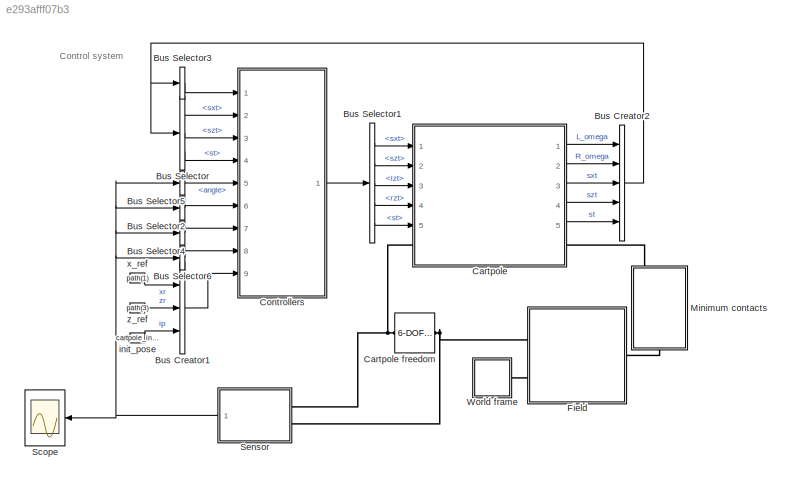
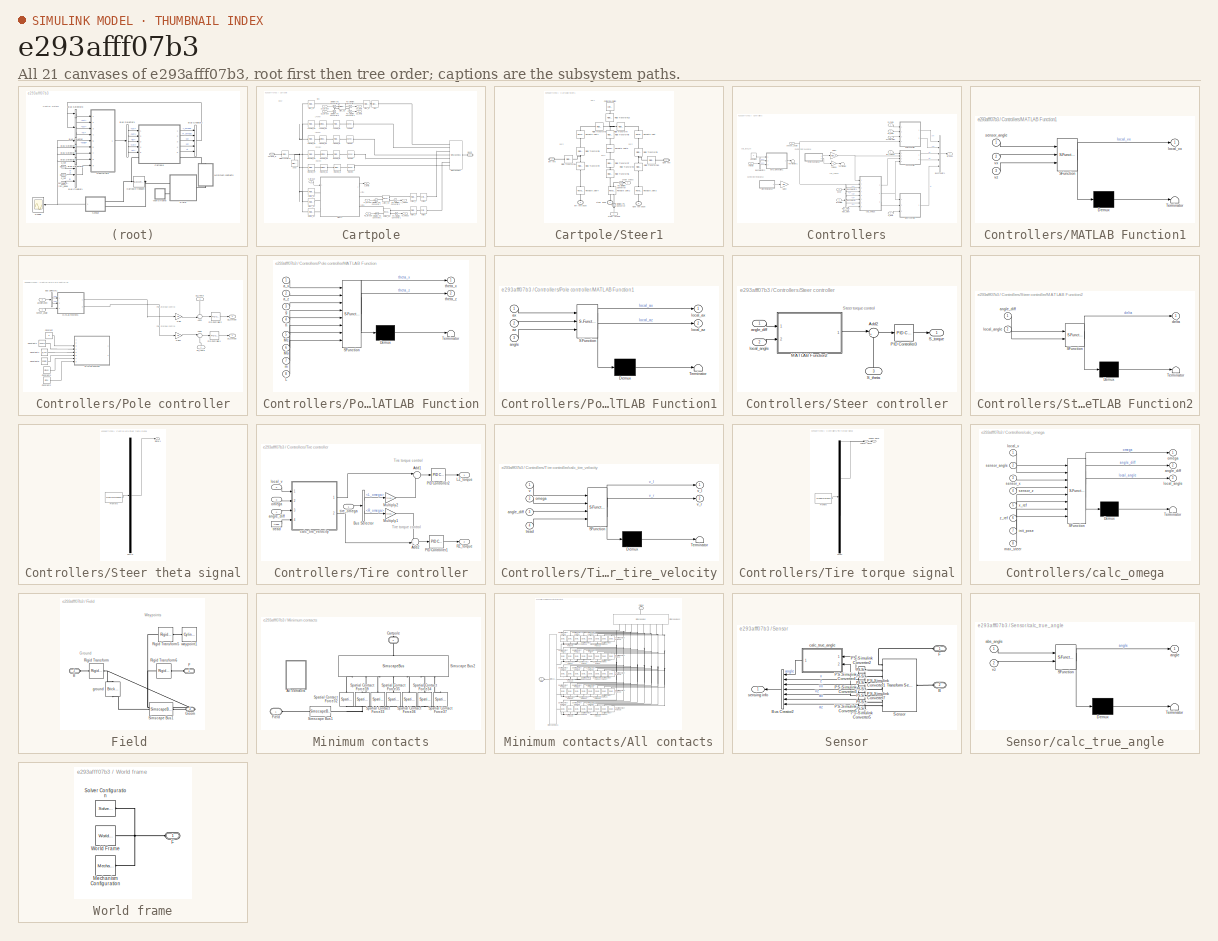
[diagram: thumbnail index - all 21 canvases of the model, root first then tree order]
MODEL slx_e293afff07b3
KIND model
CONFIG AbsTol = auto
CONFIG EnableMultiTasking = on
CONFIG FixedStep = auto
CONFIG MaxStep = 0.01
CONFIG MinStep = auto
CONFIG RelTol = 1e-3
CONFIG SampleTimeConstraint = Unconstrained
CONFIG Solver = ode15s
CONFIG SolverName = ode15s
CONFIG StartTime = 0.0
CONFIG StopTime = 10
BLOCK [BusCreator] Bus Creator1
  DisplayOption = bar
  InheritFromInputs = on
  Inputs = 3
  Ports = [3, 1]
BLOCK [BusCreator] Bus Creator2
  DisplayOption = bar
  InheritFromInputs = on
  Inputs = 5
  Ports = [5, 1]
BLOCK [BusSelector] Bus Selector
  OutputAsBus = off
  OutputSignals = sxt,szt,st
  Ports = [1, 3]
BLOCK [BusSelector] Bus Selector1
  OutputAsBus = off
  OutputSignals = sxt,szt,lzt,rzt,st
  Ports = [1, 5]
BLOCK [BusSelector] Bus Selector2
  OutputAsBus = on
  OutputSignals = x,z
  Ports = [1, 1]
BLOCK [BusSelector] Bus Selector3
  OutputAsBus = on
  OutputSignals = L_omega,R_omega
  Ports = [1, 1]
BLOCK [BusSelector] Bus Selector4
  OutputAsBus = on
  OutputSignals = vx,vz
  Ports = [1, 1]
BLOCK [BusSelector] Bus Selector5
  OutputAsBus = off
  OutputSignals = angle
  Ports = [1, 1]
BLOCK [BusSelector] Bus Selector6
  OutputAsBus = on
  OutputSignals = ax,az
  Ports = [1, 1]
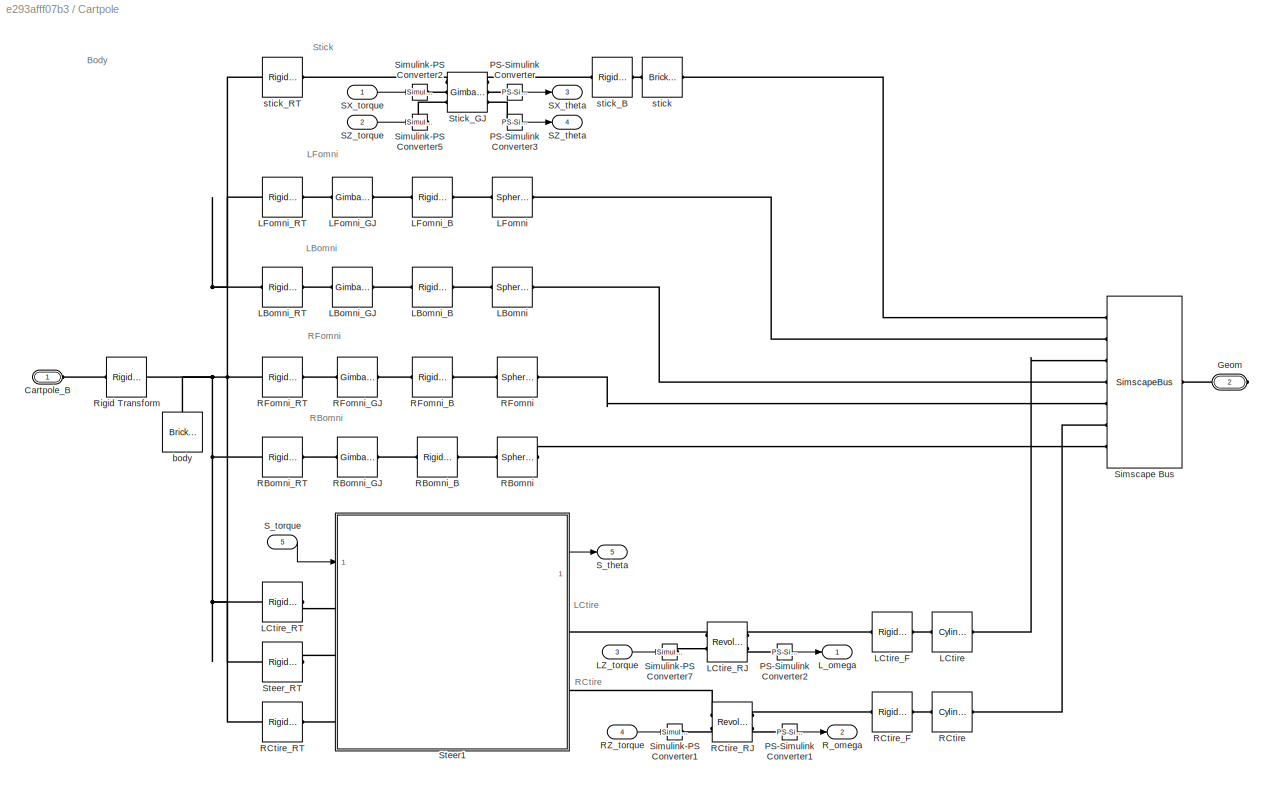
BLOCK [SubSystem] Cartpole
  Ports = [5, 5, 0, 0, 0, 1, 1]
  RequestExecContextInheritance = off
BLOCK [Reference] Cartpole freedom  REF=sm_lib/Joints/6-DOF Joint
  Ports = [0, 0, 0, 0, 0, 1, 1]
  SourceBlock = sm_lib/Joints/6-DOF Joint
  SourceProductBaseCode = MS
  SourceProductName = Simscape Multibody
  SourceType = 6-DOF Joint
BLOCK [Reference] Cartpole/ LFomni  REF=sm_lib/Body Elements/Spherical Solid
  Ports = [0, 0, 0, 0, 0, 1, 1]
  SourceBlock = sm_lib/Body Elements/Spherical Solid
  SourceProductBaseCode = MS
  SourceProductName = Simscape Multibody
  SourceType = Spherical Solid
BLOCK [PMIOPort] Cartpole/Cartpole_B
  Side = Left
BLOCK [PMIOPort] Cartpole/Geom
  Port = 2
  Side = Right
BLOCK [Reference] Cartpole/LBomni  REF=sm_lib/Body Elements/Spherical Solid
  Ports = [0, 0, 0, 0, 0, 1, 1]
  SourceBlock = sm_lib/Body Elements/Spherical Solid
  SourceProductBaseCode = MS
  SourceProductName = Simscape Multibody
  SourceType = Spherical Solid
BLOCK [Reference] Cartpole/LBomni_B  REF=sm_lib/Frames and
Transforms/Rigid
Transform
  Ports = [0, 0, 0, 0, 0, 1, 1]
  SourceBlock = sm_lib/Frames and\nTransforms/Rigid\nTransform
  SourceProductBaseCode = MS
  SourceProductName = Simscape Multibody
  SourceType = Rigid\nTransform
BLOCK [Reference] Cartpole/LBomni_GJ  REF=sm_lib/Joints/Gimbal Joint
  Ports = [0, 0, 0, 0, 0, 1, 1]
  SourceBlock = sm_lib/Joints/Gimbal Joint
  SourceProductBaseCode = MS
  SourceProductName = Simscape Multibody
  SourceType = Gimbal Joint
BLOCK [Reference] Cartpole/LBomni_RT  REF=sm_lib/Frames and
Transforms/Rigid
Transform
  Ports = [0, 0, 0, 0, 0, 1, 1]
  SourceBlock = sm_lib/Frames and\nTransforms/Rigid\nTransform
  SourceProductBaseCode = MS
  SourceProductName = Simscape Multibody
  SourceType = Rigid\nTransform
BLOCK [Reference] Cartpole/LCtire  REF=sm_lib/Body Elements/Cylindrical Solid
  Ports = [0, 0, 0, 0, 0, 1, 1]
  SourceBlock = sm_lib/Body Elements/Cylindrical Solid
  SourceProductBaseCode = MS
  SourceProductName = Simscape Multibody
  SourceType = Cylindrical Solid
BLOCK [Reference] Cartpole/LCtire_F  REF=sm_lib/Frames and
Transforms/Rigid
Transform
  Ports = [0, 0, 0, 0, 0, 1, 1]
  SourceBlock = sm_lib/Frames and\nTransforms/Rigid\nTransform
  SourceProductBaseCode = MS
  SourceProductName = Simscape Multibody
  SourceType = Rigid\nTransform
BLOCK [Reference] Cartpole/LCtire_RJ  REF=sm_lib/Joints/Revolute Joint
  Ports = [0, 0, 0, 0, 0, 2, 2]
  SourceBlock = sm_lib/Joints/Revolute Joint
  SourceProductBaseCode = MS
  SourceProductName = Simscape Multibody
  SourceType = Revolute Joint
BLOCK [Reference] Cartpole/LCtire_RT  REF=sm_lib/Frames and
Transforms/Rigid
Transform
  Ports = [0, 0, 0, 0, 0, 1, 1]
  SourceBlock = sm_lib/Frames and\nTransforms/Rigid\nTransform
  SourceProductBaseCode = MS
  SourceProductName = Simscape Multibody
  SourceType = Rigid\nTransform
BLOCK [Reference] Cartpole/LFomni_B  REF=sm_lib/Frames and
Transforms/Rigid
Transform
  Ports = [0, 0, 0, 0, 0, 1, 1]
  SourceBlock = sm_lib/Frames and\nTransforms/Rigid\nTransform
  SourceProductBaseCode = MS
  SourceProductName = Simscape Multibody
  SourceType = Rigid\nTransform
BLOCK [Reference] Cartpole/LFomni_GJ  REF=sm_lib/Joints/Gimbal Joint
  Ports = [0, 0, 0, 0, 0, 1, 1]
  SourceBlock = sm_lib/Joints/Gimbal Joint
  SourceProductBaseCode = MS
  SourceProductName = Simscape Multibody
  SourceType = Gimbal Joint
BLOCK [Reference] Cartpole/LFomni_RT  REF=sm_lib/Frames and
Transforms/Rigid
Transform
  Ports = [0, 0, 0, 0, 0, 1, 1]
  SourceBlock = sm_lib/Frames and\nTransforms/Rigid\nTransform
  SourceProductBaseCode = MS
  SourceProductName = Simscape Multibody
  SourceType = Rigid\nTransform
BLOCK [Inport] Cartpole/LZ_torque
  IconDisplay = Port number
  Port = 3
BLOCK [Outport] Cartpole/L_omega
  IconDisplay = Port number
BLOCK [Reference] Cartpole/PS-Simulink Converter  REF=nesl_utility/PS-Simulink
Converter
  Ports = [0, 1, 0, 0, 0, 1]
  SourceBlock = nesl_utility/PS-Simulink\nConverter
  SourceProductBaseCode = SS
  SourceProductName = Simscape
  SourceType = PS-Simulink\nConverter
BLOCK [Reference] Cartpole/PS-Simulink Converter1  REF=nesl_utility/PS-Simulink
Converter
  Ports = [0, 1, 0, 0, 0, 1]
  SourceBlock = nesl_utility/PS-Simulink\nConverter
  SourceProductBaseCode = SS
  SourceProductName = Simscape
  SourceType = PS-Simulink\nConverter
BLOCK [Reference] Cartpole/PS-Simulink Converter2  REF=nesl_utility/PS-Simulink
Converter
  Ports = [0, 1, 0, 0, 0, 1]
  SourceBlock = nesl_utility/PS-Simulink\nConverter
  SourceProductBaseCode = SS
  SourceProductName = Simscape
  SourceType = PS-Simulink\nConverter
BLOCK [Reference] Cartpole/PS-Simulink Converter3  REF=nesl_utility/PS-Simulink
Converter
  Ports = [0, 1, 0, 0, 0, 1]
  SourceBlock = nesl_utility/PS-Simulink\nConverter
  SourceProductBaseCode = SS
  SourceProductName = Simscape
  SourceType = PS-Simulink\nConverter
BLOCK [Reference] Cartpole/RBomni  REF=sm_lib/Body Elements/Spherical Solid
  Ports = [0, 0, 0, 0, 0, 1, 1]
  SourceBlock = sm_lib/Body Elements/Spherical Solid
  SourceProductBaseCode = MS
  SourceProductName = Simscape Multibody
  SourceType = Spherical Solid
BLOCK [Reference] Cartpole/RBomni_B  REF=sm_lib/Frames and
Transforms/Rigid
Transform
  Ports = [0, 0, 0, 0, 0, 1, 1]
  SourceBlock = sm_lib/Frames and\nTransforms/Rigid\nTransform
  SourceProductBaseCode = MS
  SourceProductName = Simscape Multibody
  SourceType = Rigid\nTransform
BLOCK [Reference] Cartpole/RBomni_GJ  REF=sm_lib/Joints/Gimbal Joint
  Ports = [0, 0, 0, 0, 0, 1, 1]
  SourceBlock = sm_lib/Joints/Gimbal Joint
  SourceProductBaseCode = MS
  SourceProductName = Simscape Multibody
  SourceType = Gimbal Joint
BLOCK [Reference] Cartpole/RBomni_RT  REF=sm_lib/Frames and
Transforms/Rigid
Transform
  Ports = [0, 0, 0, 0, 0, 1, 1]
  SourceBlock = sm_lib/Frames and\nTransforms/Rigid\nTransform
  SourceProductBaseCode = MS
  SourceProductName = Simscape Multibody
  SourceType = Rigid\nTransform
BLOCK [Reference] Cartpole/RCtire  REF=sm_lib/Body Elements/Cylindrical Solid
  Ports = [0, 0, 0, 0, 0, 1, 1]
  SourceBlock = sm_lib/Body Elements/Cylindrical Solid
  SourceProductBaseCode = MS
  SourceProductName = Simscape Multibody
  SourceType = Cylindrical Solid
BLOCK [Reference] Cartpole/RCtire_F  REF=sm_lib/Frames and
Transforms/Rigid
Transform
  Ports = [0, 0, 0, 0, 0, 1, 1]
  SourceBlock = sm_lib/Frames and\nTransforms/Rigid\nTransform
  SourceProductBaseCode = MS
  SourceProductName = Simscape Multibody
  SourceType = Rigid\nTransform
BLOCK [Reference] Cartpole/RCtire_RJ  REF=sm_lib/Joints/Revolute Joint
  Ports = [0, 0, 0, 0, 0, 2, 2]
  SourceBlock = sm_lib/Joints/Revolute Joint
  SourceProductBaseCode = MS
  SourceProductName = Simscape Multibody
  SourceType = Revolute Joint
BLOCK [Reference] Cartpole/RCtire_RT  REF=sm_lib/Frames and
Transforms/Rigid
Transform
  Ports = [0, 0, 0, 0, 0, 1, 1]
  SourceBlock = sm_lib/Frames and\nTransforms/Rigid\nTransform
  SourceProductBaseCode = MS
  SourceProductName = Simscape Multibody
  SourceType = Rigid\nTransform
BLOCK [Reference] Cartpole/RFomni  REF=sm_lib/Body Elements/Spherical Solid
  Ports = [0, 0, 0, 0, 0, 1, 1]
  SourceBlock = sm_lib/Body Elements/Spherical Solid
  SourceProductBaseCode = MS
  SourceProductName = Simscape Multibody
  SourceType = Spherical Solid
BLOCK [Reference] Cartpole/RFomni_B  REF=sm_lib/Frames and
Transforms/Rigid
Transform
  Ports = [0, 0, 0, 0, 0, 1, 1]
  SourceBlock = sm_lib/Frames and\nTransforms/Rigid\nTransform
  SourceProductBaseCode = MS
  SourceProductName = Simscape Multibody
  SourceType = Rigid\nTransform
BLOCK [Reference] Cartpole/RFomni_GJ  REF=sm_lib/Joints/Gimbal Joint
  Ports = [0, 0, 0, 0, 0, 1, 1]
  SourceBlock = sm_lib/Joints/Gimbal Joint
  SourceProductBaseCode = MS
  SourceProductName = Simscape Multibody
  SourceType = Gimbal Joint
BLOCK [Reference] Cartpole/RFomni_RT  REF=sm_lib/Frames and
Transforms/Rigid
Transform
  Ports = [0, 0, 0, 0, 0, 1, 1]
  SourceBlock = sm_lib/Frames and\nTransforms/Rigid\nTransform
  SourceProductBaseCode = MS
  SourceProductName = Simscape Multibody
  SourceType = Rigid\nTransform
BLOCK [Inport] Cartpole/RZ_torque
  IconDisplay = Port number
  Port = 4
BLOCK [Outport] Cartpole/R_omega
  IconDisplay = Port number
  Port = 2
BLOCK [Reference] Cartpole/Rigid Transform  REF=sm_lib/Frames and
Transforms/Rigid
Transform
  Ports = [0, 0, 0, 0, 0, 1, 1]
  SourceBlock = sm_lib/Frames and\nTransforms/Rigid\nTransform
  SourceProductBaseCode = MS
  SourceProductName = Simscape Multibody
  SourceType = Rigid\nTransform
BLOCK [Outport] Cartpole/SX_theta
  IconDisplay = Port number
  Port = 3
BLOCK [Inport] Cartpole/SX_torque
  IconDisplay = Port number
BLOCK [Outport] Cartpole/SZ_theta
  IconDisplay = Port number
  Port = 4
BLOCK [Inport] Cartpole/SZ_torque
  IconDisplay = Port number
  Port = 2
BLOCK [Outport] Cartpole/S_theta
  IconDisplay = Port number
  Port = 5
BLOCK [Inport] Cartpole/S_torque
  IconDisplay = Port number
  Port = 5
BLOCK [SimscapeBus] Cartpole/Simscape Bus
  HierarchyStrings = Stick;LFomni;LCtire;LBomni;RFomni;RCtire;RBomni
  Ports = [0, 0, 0, 0, 0, 7, 1]
BLOCK [Reference] Cartpole/Simulink-PS Converter1  REF=nesl_utility/Simulink-PS
Converter
  Ports = [1, 0, 0, 0, 0, 0, 1]
  SourceBlock = nesl_utility/Simulink-PS\nConverter
  SourceProductBaseCode = SS
  SourceProductName = Simscape
  SourceType = Simulink-PS\nConverter
BLOCK [Reference] Cartpole/Simulink-PS Converter2  REF=nesl_utility/Simulink-PS
Converter
  Ports = [1, 0, 0, 0, 0, 0, 1]
  SourceBlock = nesl_utility/Simulink-PS\nConverter
  SourceProductBaseCode = SS
  SourceProductName = Simscape
  SourceType = Simulink-PS\nConverter
BLOCK [Reference] Cartpole/Simulink-PS Converter5  REF=nesl_utility/Simulink-PS
Converter
  Ports = [1, 0, 0, 0, 0, 0, 1]
  SourceBlock = nesl_utility/Simulink-PS\nConverter
  SourceProductBaseCode = SS
  SourceProductName = Simscape
  SourceType = Simulink-PS\nConverter
BLOCK [Reference] Cartpole/Simulink-PS Converter7  REF=nesl_utility/Simulink-PS
Converter
  Ports = [1, 0, 0, 0, 0, 0, 1]
  SourceBlock = nesl_utility/Simulink-PS\nConverter
  SourceProductBaseCode = SS
  SourceProductName = Simscape
  SourceType = Simulink-PS\nConverter
BLOCK [SubSystem] Cartpole/Steer1
  Ports = [1, 1, 0, 0, 0, 3, 2]
  RequestExecContextInheritance = off
BLOCK [Reference] Cartpole/Steer1/Cylindrical Solid2  REF=sm_lib/Body Elements/Cylindrical Solid
  Ports = [0, 0, 0, 0, 0, 0, 1]
  SourceBlock = sm_lib/Body Elements/Cylindrical Solid
  SourceProductBaseCode = MS
  SourceProductName = Simscape Multibody
  SourceType = Cylindrical Solid
BLOCK [Reference] Cartpole/Steer1/PS-Simulink Converter  REF=nesl_utility/PS-Simulink
Converter
  Ports = [0, 1, 0, 0, 0, 1]
  SourceBlock = nesl_utility/PS-Simulink\nConverter
  SourceProductBaseCode = SS
  SourceProductName = Simscape
  SourceType = PS-Simulink\nConverter
BLOCK [Reference] Cartpole/Steer1/Revolute Joint  REF=sm_lib/Joints/Revolute Joint
  Ports = [0, 0, 0, 0, 0, 1, 1]
  SourceBlock = sm_lib/Joints/Revolute Joint
  SourceProductBaseCode = MS
  SourceProductName = Simscape Multibody
  SourceType = Revolute Joint
BLOCK [Reference] Cartpole/Steer1/Revolute Joint1  REF=sm_lib/Joints/Revolute Joint
  Ports = [0, 0, 0, 0, 0, 1, 1]
  SourceBlock = sm_lib/Joints/Revolute Joint
  SourceProductBaseCode = MS
  SourceProductName = Simscape Multibody
  SourceType = Revolute Joint
BLOCK [Reference] Cartpole/Steer1/Revolute Joint2  REF=sm_lib/Joints/Revolute Joint
  Ports = [0, 0, 0, 0, 0, 2, 2]
  SourceBlock = sm_lib/Joints/Revolute Joint
  SourceProductBaseCode = MS
  SourceProductName = Simscape Multibody
  SourceType = Revolute Joint
BLOCK [Reference] Cartpole/Steer1/Revolute Joint3  REF=sm_lib/Joints/Revolute Joint
  Ports = [0, 0, 0, 0, 0, 1, 1]
  SourceBlock = sm_lib/Joints/Revolute Joint
  SourceProductBaseCode = MS
  SourceProductName = Simscape Multibody
  SourceType = Revolute Joint
BLOCK [Reference] Cartpole/Steer1/Revolute Joint4  REF=sm_lib/Joints/Revolute Joint
  Ports = [0, 0, 0, 0, 0, 1, 1]
  SourceBlock = sm_lib/Joints/Revolute Joint
  SourceProductBaseCode = MS
  SourceProductName = Simscape Multibody
  SourceType = Revolute Joint
BLOCK [Reference] Cartpole/Steer1/Revolute Joint5  REF=sm_lib/Joints/Revolute Joint
  Ports = [0, 0, 0, 0, 0, 1, 1]
  SourceBlock = sm_lib/Joints/Revolute Joint
  SourceProductBaseCode = MS
  SourceProductName = Simscape Multibody
  SourceType = Revolute Joint
BLOCK [Reference] Cartpole/Steer1/Rigid Transform  REF=sm_lib/Frames and
Transforms/Rigid
Transform
  Ports = [0, 0, 0, 0, 0, 1, 1]
  SourceBlock = sm_lib/Frames and\nTransforms/Rigid\nTransform
  SourceProductBaseCode = MS
  SourceProductName = Simscape Multibody
  SourceType = Rigid\nTransform
BLOCK [Reference] Cartpole/Steer1/Rigid Transform1  REF=sm_lib/Frames and
Transforms/Rigid
Transform
  Ports = [0, 0, 0, 0, 0, 1, 1]
  SourceBlock = sm_lib/Frames and\nTransforms/Rigid\nTransform
  SourceProductBaseCode = MS
  SourceProductName = Simscape Multibody
  SourceType = Rigid\nTransform
BLOCK [Reference] Cartpole/Steer1/Rigid Transform13  REF=sm_lib/Frames and
Transforms/Rigid
Transform
  Ports = [0, 0, 0, 0, 0, 1, 1]
  SourceBlock = sm_lib/Frames and\nTransforms/Rigid\nTransform
  SourceProductBaseCode = MS
  SourceProductName = Simscape Multibody
  SourceType = Rigid\nTransform
BLOCK [Reference] Cartpole/Steer1/Rigid Transform14  REF=sm_lib/Frames and
Transforms/Rigid
Transform
  Ports = [0, 0, 0, 0, 0, 1, 1]
  SourceBlock = sm_lib/Frames and\nTransforms/Rigid\nTransform
  SourceProductBaseCode = MS
  SourceProductName = Simscape Multibody
  SourceType = Rigid\nTransform
BLOCK [Reference] Cartpole/Steer1/Rigid Transform15  REF=sm_lib/Frames and
Transforms/Rigid
Transform
  Ports = [0, 0, 0, 0, 0, 1, 1]
  SourceBlock = sm_lib/Frames and\nTransforms/Rigid\nTransform
  SourceProductBaseCode = MS
  SourceProductName = Simscape Multibody
  SourceType = Rigid\nTransform
BLOCK [Reference] Cartpole/Steer1/Rigid Transform2  REF=sm_lib/Frames and
Transforms/Rigid
Transform
  Ports = [0, 0, 0, 0, 0, 1, 1]
  SourceBlock = sm_lib/Frames and\nTransforms/Rigid\nTransform
  SourceProductBaseCode = MS
  SourceProductName = Simscape Multibody
  SourceType = Rigid\nTransform
BLOCK [Reference] Cartpole/Steer1/Rigid Transform3  REF=sm_lib/Frames and
Transforms/Rigid
Transform
  Ports = [0, 0, 0, 0, 0, 1, 1]
  SourceBlock = sm_lib/Frames and\nTransforms/Rigid\nTransform
  SourceProductBaseCode = MS
  SourceProductName = Simscape Multibody
  SourceType = Rigid\nTransform
BLOCK [Reference] Cartpole/Steer1/Rigid Transform4  REF=sm_lib/Frames and
Transforms/Rigid
Transform
  Ports = [0, 0, 0, 0, 0, 1, 1]
  SourceBlock = sm_lib/Frames and\nTransforms/Rigid\nTransform
  SourceProductBaseCode = MS
  SourceProductName = Simscape Multibody
  SourceType = Rigid\nTransform
BLOCK [Reference] Cartpole/Steer1/Rigid Transform5  REF=sm_lib/Frames and
Transforms/Rigid
Transform
  Ports = [0, 0, 0, 0, 0, 1, 1]
  SourceBlock = sm_lib/Frames and\nTransforms/Rigid\nTransform
  SourceProductBaseCode = MS
  SourceProductName = Simscape Multibody
  SourceType = Rigid\nTransform
BLOCK [Reference] Cartpole/Steer1/Rigid Transform6  REF=sm_lib/Frames and
Transforms/Rigid
Transform
  Ports = [0, 0, 0, 0, 0, 1, 1]
  SourceBlock = sm_lib/Frames and\nTransforms/Rigid\nTransform
  SourceProductBaseCode = MS
  SourceProductName = Simscape Multibody
  SourceType = Rigid\nTransform
BLOCK [Reference] Cartpole/Steer1/Rigid Transform7  REF=sm_lib/Frames and
Transforms/Rigid
Transform
  Ports = [0, 0, 0, 0, 0, 1, 1]
  SourceBlock = sm_lib/Frames and\nTransforms/Rigid\nTransform
  SourceProductBaseCode = MS
  SourceProductName = Simscape Multibody
  SourceType = Rigid\nTransform
BLOCK [Reference] Cartpole/Steer1/Rigid Transform8  REF=sm_lib/Frames and
Transforms/Rigid
Transform
  Ports = [0, 0, 0, 0, 0, 1, 1]
  SourceBlock = sm_lib/Frames and\nTransforms/Rigid\nTransform
  SourceProductBaseCode = MS
  SourceProductName = Simscape Multibody
  SourceType = Rigid\nTransform
BLOCK [Reference] Cartpole/Steer1/Simulink-PS Converter  REF=nesl_utility/Simulink-PS
Converter
  Ports = [1, 0, 0, 0, 0, 0, 1]
  SourceBlock = nesl_utility/Simulink-PS\nConverter
  SourceProductBaseCode = SS
  SourceProductName = Simscape
  SourceType = Simulink-PS\nConverter
BLOCK [PMIOPort] Cartpole/Steer1/left tire
  Side = Right
BLOCK [PMIOPort] Cartpole/Steer1/left tire base
  Port = 3
  Side = Left
BLOCK [PMIOPort] Cartpole/Steer1/right tire
  Port = 2
  Side = Right
BLOCK [PMIOPort] Cartpole/Steer1/right tire base
  Port = 5
  Side = Left
BLOCK [PMIOPort] Cartpole/Steer1/steer base
  Port = 4
  Side = Left
BLOCK [Outport] Cartpole/Steer1/steer theta
  IconDisplay = Port number
BLOCK [Inport] Cartpole/Steer1/steer torque
  IconDisplay = Port number
BLOCK [Reference] Cartpole/Steer_RT  REF=sm_lib/Frames and
Transforms/Rigid
Transform
  Ports = [0, 0, 0, 0, 0, 1, 1]
  SourceBlock = sm_lib/Frames and\nTransforms/Rigid\nTransform
  SourceProductBaseCode = MS
  SourceProductName = Simscape Multibody
  SourceType = Rigid\nTransform
BLOCK [Reference] Cartpole/Stick_GJ  REF=sm_lib/Joints/Gimbal Joint
  Ports = [0, 0, 0, 0, 0, 3, 3]
  SourceBlock = sm_lib/Joints/Gimbal Joint
  SourceProductBaseCode = MS
  SourceProductName = Simscape Multibody
  SourceType = Gimbal Joint
BLOCK [Reference] Cartpole/body  REF=sm_lib/Body Elements/Brick Solid
  Ports = [0, 0, 0, 0, 0, 0, 1]
  SourceBlock = sm_lib/Body Elements/Brick Solid
  SourceProductBaseCode = MS
  SourceProductName = Simscape Multibody
  SourceType = Brick Solid
BLOCK [Reference] Cartpole/stick  REF=sm_lib/Body Elements/Brick Solid
  Ports = [0, 0, 0, 0, 0, 1, 1]
  SourceBlock = sm_lib/Body Elements/Brick Solid
  SourceProductBaseCode = MS
  SourceProductName = Simscape Multibody
  SourceType = Brick Solid
BLOCK [Reference] Cartpole/stick_B  REF=sm_lib/Frames and
Transforms/Rigid
Transform
  Ports = [0, 0, 0, 0, 0, 1, 1]
  SourceBlock = sm_lib/Frames and\nTransforms/Rigid\nTransform
  SourceProductBaseCode = MS
  SourceProductName = Simscape Multibody
  SourceType = Rigid\nTransform
BLOCK [Reference] Cartpole/stick_RT  REF=sm_lib/Frames and
Transforms/Rigid
Transform
  Ports = [0, 0, 0, 0, 0, 1, 1]
  SourceBlock = sm_lib/Frames and\nTransforms/Rigid\nTransform
  SourceProductBaseCode = MS
  SourceProductName = Simscape Multibody
  SourceType = Rigid\nTransform
BLOCK [SubSystem] Controllers
  Ports = [9, 1]
  RequestExecContextInheritance = off
BLOCK [BusCreator] Controllers/Bus Creator1
  DisplayOption = bar
  InheritFromInputs = on
  Inputs = 5
  Ports = [5, 1]
BLOCK [BusSelector] Controllers/Bus Selector
  OutputAsBus = off
  OutputSignals = xr,zr,ip
  Ports = [1, 3]
BLOCK [BusSelector] Controllers/Bus Selector1
  OutputAsBus = off
  OutputSignals = x,z
  Ports = [1, 2]
BLOCK [BusSelector] Controllers/Bus Selector2
  OutputAsBus = off
  OutputSignals = vx,vz
  Ports = [1, 2]
BLOCK [Constant] Controllers/Constant
BLOCK [Gain] Controllers/Gain2
  Commented = on
  Gain = pi/4
  OutDataTypeStr = Inherit: Inherit via internal rule
  ParamDataTypeStr = Inherit: Inherit via internal rule
  SaturateOnIntegerOverflow = off
BLOCK [Gain] Controllers/Gain3
  Gain = max_v
  OutDataTypeStr = Inherit: Inherit via internal rule
  ParamDataTypeStr = Inherit: Inherit via internal rule
  SaturateOnIntegerOverflow = off
BLOCK [SubSystem] Controllers/MATLAB Function1
  ErrorFcn = Stateflow.Translate.translate
  PermitHierarchicalResolution = ExplicitOnly
  Ports = [3, 1]
  RequestExecContextInheritance = off
  SFBlockType = MATLAB Function
  TreatAsAtomicUnit = on
BLOCK [Demux] Controllers/MATLAB Function1/ Demux 
  Outputs = 1
  Ports = [1, 1]
BLOCK [S-Function] Controllers/MATLAB Function1/ SFunction 
  EnableBusSupport = on
  FunctionName = sf_sfun
  PortCounts = [3 2]
  Ports = [3, 2]
  SFcnIsStateOwnerBlock = off
  SFunctionDeploymentMode = off
  Tag = Stateflow S-Function 5
BLOCK [Terminator] Controllers/MATLAB Function1/ Terminator 
BLOCK [Outport] Controllers/MATLAB Function1/local_vx
  IconDisplay = Port number
BLOCK [Inport] Controllers/MATLAB Function1/sensor_angle
  IconDisplay = Port number
BLOCK [Inport] Controllers/MATLAB Function1/vx
  IconDisplay = Port number
  Port = 2
BLOCK [Inport] Controllers/MATLAB Function1/vz
  IconDisplay = Port number
  Port = 3
BLOCK [SubSystem] Controllers/Pole controller
  Ports = [4, 2]
  RequestExecContextInheritance = off
BLOCK [Sum] Controllers/Pole controller/Add3
  IconShape = round
  InputSameDT = off
  Inputs = -+|
  OutDataTypeStr = Inherit: Inherit via internal rule
  Ports = [2, 1]
  SaturateOnIntegerOverflow = off
BLOCK [Sum] Controllers/Pole controller/Add5
  IconShape = round
  InputSameDT = off
  Inputs = |+-
  OutDataTypeStr = Inherit: Inherit via internal rule
  Ports = [2, 1]
  SaturateOnIntegerOverflow = off
BLOCK [BusSelector] Controllers/Pole controller/Bus Selector1
  OutputAsBus = off
  OutputSignals = ax,az
  Ports = [1, 2]
BLOCK [Constant] Controllers/Pole controller/Constant
  Value = g
BLOCK [Constant] Controllers/Pole controller/Constant1
  Value = body.h
BLOCK [Constant] Controllers/Pole controller/Constant2
  Value = stick.l
BLOCK [Constant] Controllers/Pole controller/Constant3
  Value = stick.m
BLOCK [Constant] Controllers/Pole controller/Constant4
  Value = m_cart
BLOCK [Constant] Controllers/Pole controller/Constant5
  Value = omni.m
BLOCK [Gain] Controllers/Pole controller/Gain
  Gain = 1/g
  OutDataTypeStr = Inherit: Inherit via internal rule
  ParamDataTypeStr = Inherit: Inherit via internal rule
  SaturateOnIntegerOverflow = off
BLOCK [Gain] Controllers/Pole controller/Gain1
  Gain = 1/g
  OutDataTypeStr = Inherit: Inherit via internal rule
  ParamDataTypeStr = Inherit: Inherit via internal rule
  SaturateOnIntegerOverflow = off
BLOCK [SubSystem] Controllers/Pole controller/MATLAB Function
  ErrorFcn = Stateflow.Translate.translate
  PermitHierarchicalResolution = ExplicitOnly
  Ports = [8, 2]
  RequestExecContextInheritance = off
  SFBlockType = MATLAB Function
  TreatAsAtomicUnit = on
BLOCK [Demux] Controllers/Pole controller/MATLAB Function/ Demux 
  Outputs = 1
  Ports = [1, 1]
BLOCK [S-Function] Controllers/Pole controller/MATLAB Function/ SFunction 
  EnableBusSupport = on
  FunctionName = sf_sfun
  PortCounts = [8 3]
  Ports = [8, 3]
  SFcnIsStateOwnerBlock = off
  SFunctionDeploymentMode = off
  Tag = Stateflow S-Function 6
BLOCK [Terminator] Controllers/Pole controller/MATLAB Function/ Terminator 
BLOCK [Inport] Controllers/Pole controller/MATLAB Function/L
  IconDisplay = Port number
  Port = 8
BLOCK [Inport] Controllers/Pole controller/MATLAB Function/Mc
  IconDisplay = Port number
  Port = 5
BLOCK [Inport] Controllers/Pole controller/MATLAB Function/Mo
  IconDisplay = Port number
  Port = 6
BLOCK [Inport] Controllers/Pole controller/MATLAB Function/a_x
  IconDisplay = Port number
BLOCK [Inport] Controllers/Pole controller/MATLAB Function/a_z
  IconDisplay = Port number
  Port = 2
BLOCK [Inport] Controllers/Pole controller/MATLAB Function/g
  IconDisplay = Port number
  Port = 3
BLOCK [Inport] Controllers/Pole controller/MATLAB Function/h
  IconDisplay = Port number
  Port = 4
BLOCK [Inport] Controllers/Pole controller/MATLAB Function/m
  IconDisplay = Port number
  Port = 7
BLOCK [Outport] Controllers/Pole controller/MATLAB Function/theta_x
  IconDisplay = Port number
BLOCK [Outport] Controllers/Pole controller/MATLAB Function/theta_z
  IconDisplay = Port number
  Port = 2
BLOCK [SubSystem] Controllers/Pole controller/MATLAB Function1
  ErrorFcn = Stateflow.Translate.translate
  PermitHierarchicalResolution = ExplicitOnly
  Ports = [3, 2]
  RequestExecContextInheritance = off
  SFBlockType = MATLAB Function
  TreatAsAtomicUnit = on
BLOCK [Demux] Controllers/Pole controller/MATLAB Function1/ Demux 
  Outputs = 1
  Ports = [1, 1]
BLOCK [S-Function] Controllers/Pole controller/MATLAB Function1/ SFunction 
  EnableBusSupport = on
  FunctionName = sf_sfun
  PortCounts = [3 3]
  Ports = [3, 3]
  SFcnIsStateOwnerBlock = off
  SFunctionDeploymentMode = off
  Tag = Stateflow S-Function 4
BLOCK [Terminator] Controllers/Pole controller/MATLAB Function1/ Terminator 
BLOCK [Inport] Controllers/Pole controller/MATLAB Function1/angle
  IconDisplay = Port number
  Port = 3
BLOCK [Inport] Controllers/Pole controller/MATLAB Function1/ax
  IconDisplay = Port number
BLOCK [Inport] Controllers/Pole controller/MATLAB Function1/az
  IconDisplay = Port number
  Port = 2
BLOCK [Outport] Controllers/Pole controller/MATLAB Function1/local_ax
  IconDisplay = Port number
BLOCK [Outport] Controllers/Pole controller/MATLAB Function1/local_az
  IconDisplay = Port number
  Port = 2
BLOCK [Reference] Controllers/Pole controller/PID Controller2  REF=simulink/Continuous/PID Controller
  Ports = [1, 1]
  SourceBlock = simulink/Continuous/PID Controller
  SourceProductBaseCode = SL
  SourceProductName = Simulink
  SourceType = PID 1dof
BLOCK [Reference] Controllers/Pole controller/PID Controller4  REF=simulink/Continuous/PID Controller
  Ports = [1, 1]
  SourceBlock = simulink/Continuous/PID Controller
  SourceProductBaseCode = SL
  SourceProductName = Simulink
  SourceType = PID 1dof
BLOCK [Inport] Controllers/Pole controller/SX_theta
  IconDisplay = Port number
BLOCK [Outport] Controllers/Pole controller/SX_torque
  IconDisplay = Port number
BLOCK [Inport] Controllers/Pole controller/SZ_theta 
  IconDisplay = Port number
  Port = 2
BLOCK [Outport] Controllers/Pole controller/SZ_torque 
  IconDisplay = Port number
  Port = 2
BLOCK [Inport] Controllers/Pole controller/acceleration
  IconDisplay = Port number
  Port = 3
BLOCK [Inport] Controllers/Pole controller/sensor_angle
  IconDisplay = Port number
  Port = 4
BLOCK [Inport] Controllers/SX_theta
  IconDisplay = Port number
  Port = 2
BLOCK [Inport] Controllers/SZ_theta 
  IconDisplay = Port number
  Port = 3
BLOCK [Inport] Controllers/S_theta
  IconDisplay = Port number
  Port = 4
BLOCK [SubSystem] Controllers/Steer controller
  Ports = [3, 1]
  RequestExecContextInheritance = off
BLOCK [Sum] Controllers/Steer controller/Add2
  IconShape = round
  InputSameDT = off
  Inputs = |+-
  OutDataTypeStr = Inherit: Inherit via internal rule
  Ports = [2, 1]
  SaturateOnIntegerOverflow = off
BLOCK [SubSystem] Controllers/Steer controller/MATLAB Function2
  ErrorFcn = Stateflow.Translate.translate
  PermitHierarchicalResolution = ExplicitOnly
  Ports = [2, 1]
  RequestExecContextInheritance = off
  SFBlockType = MATLAB Function
  TreatAsAtomicUnit = on
BLOCK [Demux] Controllers/Steer controller/MATLAB Function2/ Demux 
  Outputs = 1
  Ports = [1, 1]
BLOCK [S-Function] Controllers/Steer controller/MATLAB Function2/ SFunction 
  EnableBusSupport = on
  FunctionName = sf_sfun
  PortCounts = [2 2]
  Ports = [2, 2]
  SFcnIsStateOwnerBlock = off
  SFunctionDeploymentMode = off
  Tag = Stateflow S-Function 3
BLOCK [Terminator] Controllers/Steer controller/MATLAB Function2/ Terminator 
BLOCK [Inport] Controllers/Steer controller/MATLAB Function2/angle_diff
  IconDisplay = Port number
BLOCK [Outport] Controllers/Steer controller/MATLAB Function2/delta
  IconDisplay = Port number
BLOCK [Inport] Controllers/Steer controller/MATLAB Function2/local_angle
  IconDisplay = Port number
  Port = 2
BLOCK [Reference] Controllers/Steer controller/PID Controller3  REF=simulink/Continuous/PID Controller
  Ports = [1, 1]
  SourceBlock = simulink/Continuous/PID Controller
  SourceProductBaseCode = SL
  SourceProductName = Simulink
  SourceType = PID 1dof
BLOCK [Inport] Controllers/Steer controller/S_theta
  IconDisplay = Port number
  Port = 3
BLOCK [Outport] Controllers/Steer controller/S_torque
  IconDisplay = Port number
BLOCK [Inport] Controllers/Steer controller/angle_diff
  IconDisplay = Port number
BLOCK [Inport] Controllers/Steer controller/local_angle
  IconDisplay = Port number
  Port = 2
BLOCK [SubSystem] Controllers/Steer theta signal
  ClipboardFcn = sigbuilder_block('clipboard');
  CloseFcn = sigbuilder_block('close');
  Commented = on
  ContinueFcn = sigbuilder_block('continue');
  CopyFcn = sigbuilder_block('copy');
  DeleteFcn = sigbuilder_block('delete');
  LoadFcn = sigbuilder_block('load');
  MaskHideContents = on
  ModelCloseFcn = sigbuilder_block('modelClose');
  NameChangeFcn = sigbuilder_block('namechange');
  OpenFcn = sigbuilder_block('open',[437.6 199.2 550.4 400 ]);
  PauseFcn = sigbuilder_block('pause');
  Ports = [0, 1]
  PreSaveFcn = sigbuilder_block('preSave');
  RequestExecContextInheritance = off
  StartFcn = sigbuilder_block('start');
  StopFcn = sigbuilder_block('stop');
  Tag = STV Subsys
BLOCK [Demux] Controllers/Steer theta signal/Demux
  Outputs = 1
  Ports = [1, 1]
  Tag = STV Demux
BLOCK [FromWorkspace] Controllers/Steer theta signal/FromWs
  SampleTime = 0
  Tag = STV FromWs
  VariableName = tuvar
  ZeroCross = on
BLOCK [Outport] Controllers/Steer theta signal/Signal 1
  IconDisplay = Port number
  Tag = STV Outport
BLOCK [Terminator] Controllers/Terminator
BLOCK [Terminator] Controllers/Terminator1
BLOCK [SubSystem] Controllers/Tire controller
  Ports = [4, 2]
  RequestExecContextInheritance = off
BLOCK [Sum] Controllers/Tire controller/Add1
  IconShape = round
  InputSameDT = off
  Inputs = |+-
  OutDataTypeStr = Inherit: Inherit via internal rule
  Ports = [2, 1]
  SaturateOnIntegerOverflow = off
BLOCK [Sum] Controllers/Tire controller/Add2
  IconShape = round
  InputSameDT = off
  Inputs = -+|
  OutDataTypeStr = Inherit: Inherit via internal rule
  Ports = [2, 1]
  SaturateOnIntegerOverflow = off
BLOCK [BusSelector] Controllers/Tire controller/Bus Selector
  OutputAsBus = off
  OutputSignals = L_omega,R_omega
  Ports = [1, 2]
BLOCK [Outport] Controllers/Tire controller/LZ_torque 
  IconDisplay = Port number
BLOCK [Gain] Controllers/Tire controller/Multiply1
  Gain = tire.r
  OutDataTypeStr = Inherit: Inherit via internal rule
  ParamDataTypeStr = Inherit: Inherit via internal rule
  SaturateOnIntegerOverflow = off
BLOCK [Gain] Controllers/Tire controller/Multiply2
  Gain = tire.r
  OutDataTypeStr = Inherit: Inherit via internal rule
  ParamDataTypeStr = Inherit: Inherit via internal rule
  SaturateOnIntegerOverflow = off
BLOCK [Reference] Controllers/Tire controller/PID Controller1  REF=simulink/Continuous/PID Controller
  Ports = [1, 1]
  SourceBlock = simulink/Continuous/PID Controller
  SourceProductBaseCode = SL
  SourceProductName = Simulink
  SourceType = PID 1dof
BLOCK [Reference] Controllers/Tire controller/PID Controller2  REF=simulink/Continuous/PID Controller
  Ports = [1, 1]
  SourceBlock = simulink/Continuous/PID Controller
  SourceProductBaseCode = SL
  SourceProductName = Simulink
  SourceType = PID 1dof
BLOCK [Outport] Controllers/Tire controller/RZ_torque
  IconDisplay = Port number
  Port = 2
BLOCK [Inport] Controllers/Tire controller/angle_diff
  IconDisplay = Port number
  Port = 4
BLOCK [SubSystem] Controllers/Tire controller/calc_tire_velocity
  ErrorFcn = Stateflow.Translate.translate
  PermitHierarchicalResolution = ExplicitOnly
  Ports = [4, 2]
  RequestExecContextInheritance = off
  SFBlockType = MATLAB Function
  TreatAsAtomicUnit = on
BLOCK [Demux] Controllers/Tire controller/calc_tire_velocity/ Demux 
  Outputs = 1
  Ports = [1, 1]
BLOCK [S-Function] Controllers/Tire controller/calc_tire_velocity/ SFunction 
  EnableBusSupport = on
  FunctionName = sf_sfun
  PortCounts = [4 3]
  Ports = [4, 3]
  SFcnIsStateOwnerBlock = off
  SFunctionDeploymentMode = off
  Tag = Stateflow S-Function 1
BLOCK [Terminator] Controllers/Tire controller/calc_tire_velocity/ Terminator 
BLOCK [Inport] Controllers/Tire controller/calc_tire_velocity/angle_diff
  IconDisplay = Port number
  Port = 3
BLOCK [Inport] Controllers/Tire controller/calc_tire_velocity/omega
  IconDisplay = Port number
  Port = 2
BLOCK [Inport] Controllers/Tire controller/calc_tire_velocity/tread
  IconDisplay = Port number
  Port = 4
BLOCK [Inport] Controllers/Tire controller/calc_tire_velocity/v
  IconDisplay = Port number
BLOCK [Outport] Controllers/Tire controller/calc_tire_velocity/v_l
  IconDisplay = Port number
BLOCK [Outport] Controllers/Tire controller/calc_tire_velocity/v_r
  IconDisplay = Port number
  Port = 2
BLOCK [Inport] Controllers/Tire controller/local_v
  IconDisplay = Port number
  Port = 2
BLOCK [Inport] Controllers/Tire controller/omega
  IconDisplay = Port number
  Port = 3
BLOCK [Inport] Controllers/Tire controller/tire_omega
  IconDisplay = Port number
BLOCK [Constant] Controllers/Tire controller/tread
  Value = tread
BLOCK [SubSystem] Controllers/Tire torque signal
  ClipboardFcn = sigbuilder_block('clipboard');
  CloseFcn = sigbuilder_block('close');
  ContinueFcn = sigbuilder_block('continue');
  CopyFcn = sigbuilder_block('copy');
  DeleteFcn = sigbuilder_block('delete');
  LoadFcn = sigbuilder_block('load');
  MaskHideContents = on
  ModelCloseFcn = sigbuilder_block('modelClose');
  NameChangeFcn = sigbuilder_block('namechange');
  OpenFcn = sigbuilder_block('open',[437.6 199.2 550.4 400 ]);
  PauseFcn = sigbuilder_block('pause');
  Ports = [0, 2]
  PreSaveFcn = sigbuilder_block('preSave');
  RequestExecContextInheritance = off
  StartFcn = sigbuilder_block('start');
  StopFcn = sigbuilder_block('stop');
  Tag = STV Subsys
BLOCK [Demux] Controllers/Tire torque signal/Demux
  Outputs = 2
  Ports = [1, 2]
  Tag = STV Demux
BLOCK [FromWorkspace] Controllers/Tire torque signal/FromWs
  SampleTime = 0
  Tag = STV FromWs
  VariableName = tuvar
  ZeroCross = on
BLOCK [Outport] Controllers/Tire torque signal/omega signal
  IconDisplay = Port number
  Port = 2
  Tag = STV Outport
BLOCK [Outport] Controllers/Tire torque signal/velocity signal
  IconDisplay = Port number
  Tag = STV Outport
BLOCK [Inport] Controllers/acceleration
  IconDisplay = Port number
  Port = 8
BLOCK [SubSystem] Controllers/calc_omega
  ErrorFcn = Stateflow.Translate.translate
  PermitHierarchicalResolution = ExplicitOnly
  Ports = [8, 3]
  RequestExecContextInheritance = off
  SFBlockType = MATLAB Function
  TreatAsAtomicUnit = on
BLOCK [Demux] Controllers/calc_omega/ Demux 
  Outputs = 1
  Ports = [1, 1]
BLOCK [S-Function] Controllers/calc_omega/ SFunction 
  EnableBusSupport = on
  FunctionName = sf_sfun
  PortCounts = [8 4]
  Ports = [8, 4]
  SFcnIsStateOwnerBlock = off
  SFunctionDeploymentMode = off
  Tag = Stateflow S-Function 2
BLOCK [Terminator] Controllers/calc_omega/ Terminator 
BLOCK [Outport] Controllers/calc_omega/angle_diff
  IconDisplay = Port number
  Port = 2
BLOCK [Inport] Controllers/calc_omega/init_pose
  IconDisplay = Port number
  Port = 7
BLOCK [Outport] Controllers/calc_omega/local_angle
  IconDisplay = Port number
  Port = 3
BLOCK [Inport] Controllers/calc_omega/local_v
  IconDisplay = Port number
BLOCK [Inport] Controllers/calc_omega/max_steer
  IconDisplay = Port number
  Port = 8
BLOCK [Outport] Controllers/calc_omega/omega
  IconDisplay = Port number
BLOCK [Inport] Controllers/calc_omega/sensor_angle
  IconDisplay = Port number
  Port = 2
BLOCK [Inport] Controllers/calc_omega/sensor_x
  IconDisplay = Port number
  Port = 3
BLOCK [Inport] Controllers/calc_omega/sensor_z
  IconDisplay = Port number
  Port = 4
BLOCK [Inport] Controllers/calc_omega/x_ref
  IconDisplay = Port number
  Port = 5
BLOCK [Inport] Controllers/calc_omega/z_ref
  IconDisplay = Port number
  Port = 6
BLOCK [Constant] Controllers/max_steer 
  Value = max_steer
BLOCK [Gain] Controllers/omega
  OutDataTypeStr = Inherit: Inherit via internal rule
  ParamDataTypeStr = Inherit: Inherit via internal rule
  SaturateOnIntegerOverflow = off
BLOCK [Inport] Controllers/pose
  IconDisplay = Port number
  Port = 6
BLOCK [Inport] Controllers/sensor_angle
  IconDisplay = Port number
  Port = 5
BLOCK [Inport] Controllers/target info
  IconDisplay = Port number
  Port = 9
BLOCK [Inport] Controllers/tire_omega
  IconDisplay = Port number
BLOCK [Outport] Controllers/torques
  IconDisplay = Port number
BLOCK [Inport] Controllers/velocity
  IconDisplay = Port number
  Port = 7
BLOCK [SubSystem] Field 
  Ports = [0, 0, 0, 0, 0, 2, 1]
  RequestExecContextInheritance = off
BLOCK [PMIOPort] Field /B
  Port = 2
  Side = Left
BLOCK [PMIOPort] Field /F
  Side = Left
BLOCK [PMIOPort] Field /Geom
  Port = 3
  Side = Right
BLOCK [Reference] Field /Rigid Transform  REF=sm_lib/Frames and
Transforms/Rigid
Transform
  Ports = [0, 0, 0, 0, 0, 1, 1]
  SourceBlock = sm_lib/Frames and\nTransforms/Rigid\nTransform
  SourceProductBaseCode = MS
  SourceProductName = Simscape Multibody
  SourceType = Rigid\nTransform
BLOCK [Reference] Field /Rigid Transform5  REF=sm_lib/Frames and
Transforms/Rigid
Transform
  Ports = [0, 0, 0, 0, 0, 1, 1]
  SourceBlock = sm_lib/Frames and\nTransforms/Rigid\nTransform
  SourceProductBaseCode = MS
  SourceProductName = Simscape Multibody
  SourceType = Rigid\nTransform
BLOCK [Reference] Field /Rigid Transform6  REF=sm_lib/Frames and
Transforms/Rigid
Transform
  Ports = [0, 0, 0, 0, 0, 1, 1]
  SourceBlock = sm_lib/Frames and\nTransforms/Rigid\nTransform
  SourceProductBaseCode = MS
  SourceProductName = Simscape Multibody
  SourceType = Rigid\nTransform
BLOCK [SimscapeBus] Field /Simscape Bus1
  HierarchyStrings = Ground
  Ports = [0, 0, 0, 0, 0, 1, 1]
BLOCK [Reference] Field /ground   REF=sm_lib/Body Elements/Brick Solid
  Ports = [0, 0, 0, 0, 0, 1, 1]
  SourceBlock = sm_lib/Body Elements/Brick Solid
  SourceProductBaseCode = MS
  SourceProductName = Simscape Multibody
  SourceType = Brick Solid
BLOCK [Reference] Field /waypoint1  REF=sm_lib/Body Elements/Cylindrical Solid
  Ports = [0, 0, 0, 0, 0, 0, 1]
  SourceBlock = sm_lib/Body Elements/Cylindrical Solid
  SourceProductBaseCode = MS
  SourceProductName = Simscape Multibody
  SourceType = Cylindrical Solid
BLOCK [SubSystem] Minimum contacts
  Ports = [0, 0, 0, 0, 0, 1, 1]
  RequestExecContextInheritance = off
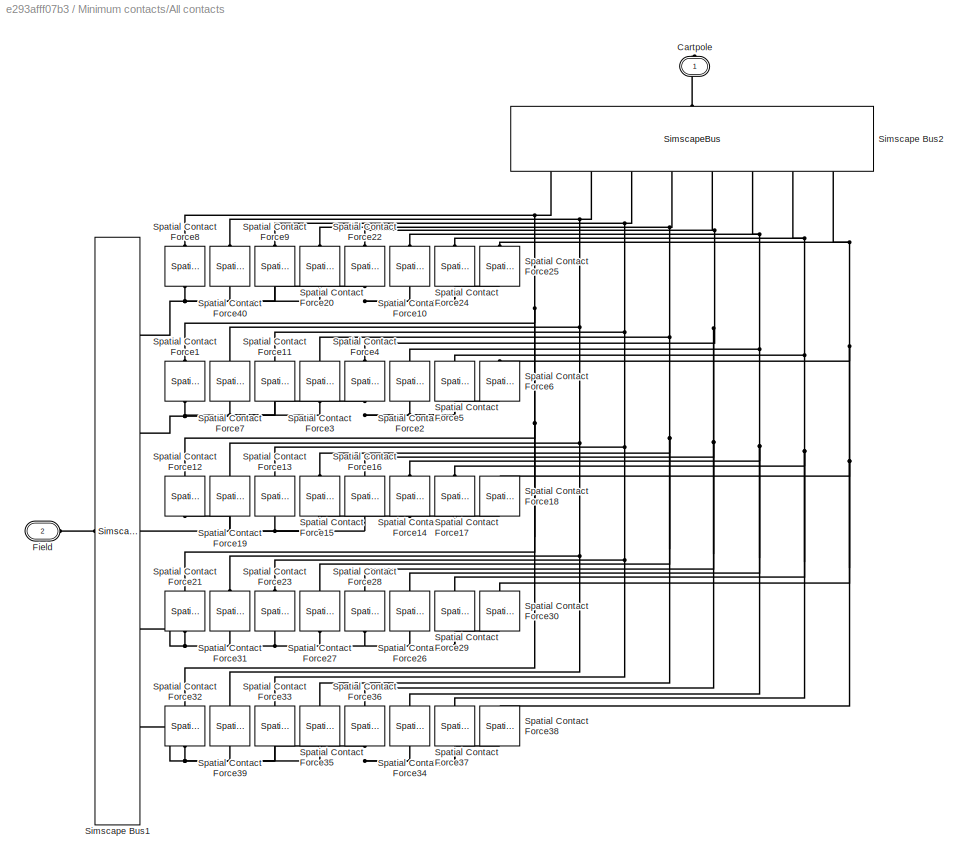
BLOCK [SubSystem] Minimum contacts/All contacts
  Commented = on
  Ports = [0, 0, 0, 0, 0, 1, 1]
  RequestExecContextInheritance = off
BLOCK [PMIOPort] Minimum contacts/All contacts/Cartpole
  Side = Right
BLOCK [PMIOPort] Minimum contacts/All contacts/Field
  Port = 2
  Side = Left
BLOCK [SimscapeBus] Minimum contacts/All contacts/Simscape Bus1
  HierarchyStrings = Wall1;Wall2;Wall3;Wall4;Ground
  Ports = [0, 0, 0, 0, 0, 5, 1]
BLOCK [SimscapeBus] Minimum contacts/All contacts/Simscape Bus2
  HierarchyStrings = Stick;LFomni;LCtire;LBomni;RFomni;RCtire;RBomni;Body
  Ports = [0, 0, 0, 0, 0, 8, 1]
BLOCK [Reference] Minimum contacts/All contacts/Spatial Contact Force1  REF=sm_lib/Forces and
Torques/Spatial
Contact Force
  Commented = on
  Ports = [0, 0, 0, 0, 0, 1, 1]
  SourceBlock = sm_lib/Forces and\nTorques/Spatial\nContact Force
  SourceProductBaseCode = MS
  SourceProductName = Simscape Multibody
  SourceType = Spatial\nContact Force
BLOCK [Reference] Minimum contacts/All contacts/Spatial Contact Force10  REF=sm_lib/Forces and
Torques/Spatial
Contact Force
  Ports = [0, 0, 0, 0, 0, 1, 1]
  SourceBlock = sm_lib/Forces and\nTorques/Spatial\nContact Force
  SourceProductBaseCode = MS
  SourceProductName = Simscape Multibody
  SourceType = Spatial\nContact Force
BLOCK [Reference] Minimum contacts/All contacts/Spatial Contact Force11  REF=sm_lib/Forces and
Torques/Spatial
Contact Force
  Commented = on
  Ports = [0, 0, 0, 0, 0, 1, 1]
  SourceBlock = sm_lib/Forces and\nTorques/Spatial\nContact Force
  SourceProductBaseCode = MS
  SourceProductName = Simscape Multibody
  SourceType = Spatial\nContact Force
BLOCK [Reference] Minimum contacts/All contacts/Spatial Contact Force12  REF=sm_lib/Forces and
Torques/Spatial
Contact Force
  Ports = [0, 0, 0, 0, 0, 1, 1]
  SourceBlock = sm_lib/Forces and\nTorques/Spatial\nContact Force
  SourceProductBaseCode = MS
  SourceProductName = Simscape Multibody
  SourceType = Spatial\nContact Force
BLOCK [Reference] Minimum contacts/All contacts/Spatial Contact Force13  REF=sm_lib/Forces and
Torques/Spatial
Contact Force
  Ports = [0, 0, 0, 0, 0, 1, 1]
  SourceBlock = sm_lib/Forces and\nTorques/Spatial\nContact Force
  SourceProductBaseCode = MS
  SourceProductName = Simscape Multibody
  SourceType = Spatial\nContact Force
BLOCK [Reference] Minimum contacts/All contacts/Spatial Contact Force14  REF=sm_lib/Forces and
Torques/Spatial
Contact Force
  Ports = [0, 0, 0, 0, 0, 1, 1]
  SourceBlock = sm_lib/Forces and\nTorques/Spatial\nContact Force
  SourceProductBaseCode = MS
  SourceProductName = Simscape Multibody
  SourceType = Spatial\nContact Force
BLOCK [Reference] Minimum contacts/All contacts/Spatial Contact Force15  REF=sm_lib/Forces and
Torques/Spatial
Contact Force
  Ports = [0, 0, 0, 0, 0, 1, 1]
  SourceBlock = sm_lib/Forces and\nTorques/Spatial\nContact Force
  SourceProductBaseCode = MS
  SourceProductName = Simscape Multibody
  SourceType = Spatial\nContact Force
BLOCK [Reference] Minimum contacts/All contacts/Spatial Contact Force16  REF=sm_lib/Forces and
Torques/Spatial
Contact Force
  Ports = [0, 0, 0, 0, 0, 1, 1]
  SourceBlock = sm_lib/Forces and\nTorques/Spatial\nContact Force
  SourceProductBaseCode = MS
  SourceProductName = Simscape Multibody
  SourceType = Spatial\nContact Force
BLOCK [Reference] Minimum contacts/All contacts/Spatial Contact Force17  REF=sm_lib/Forces and
Torques/Spatial
Contact Force
  Ports = [0, 0, 0, 0, 0, 1, 1]
  SourceBlock = sm_lib/Forces and\nTorques/Spatial\nContact Force
  SourceProductBaseCode = MS
  SourceProductName = Simscape Multibody
  SourceType = Spatial\nContact Force
BLOCK [Reference] Minimum contacts/All contacts/Spatial Contact Force18  REF=sm_lib/Forces and
Torques/Spatial
Contact Force
  Ports = [0, 0, 0, 0, 0, 1, 1]
  SourceBlock = sm_lib/Forces and\nTorques/Spatial\nContact Force
  SourceProductBaseCode = MS
  SourceProductName = Simscape Multibody
  SourceType = Spatial\nContact Force
BLOCK [Reference] Minimum contacts/All contacts/Spatial Contact Force19  REF=sm_lib/Forces and
Torques/Spatial
Contact Force
  Ports = [0, 0, 0, 0, 0, 1, 1]
  SourceBlock = sm_lib/Forces and\nTorques/Spatial\nContact Force
  SourceProductBaseCode = MS
  SourceProductName = Simscape Multibody
  SourceType = Spatial\nContact Force
BLOCK [Reference] Minimum contacts/All contacts/Spatial Contact Force2  REF=sm_lib/Forces and
Torques/Spatial
Contact Force
  Commented = on
  Ports = [0, 0, 0, 0, 0, 1, 1]
  SourceBlock = sm_lib/Forces and\nTorques/Spatial\nContact Force
  SourceProductBaseCode = MS
  SourceProductName = Simscape Multibody
  SourceType = Spatial\nContact Force
BLOCK [Reference] Minimum contacts/All contacts/Spatial Contact Force20  REF=sm_lib/Forces and
Torques/Spatial
Contact Force
  Ports = [0, 0, 0, 0, 0, 1, 1]
  SourceBlock = sm_lib/Forces and\nTorques/Spatial\nContact Force
  SourceProductBaseCode = MS
  SourceProductName = Simscape Multibody
  SourceType = Spatial\nContact Force
BLOCK [Reference] Minimum contacts/All contacts/Spatial Contact Force21  REF=sm_lib/Forces and
Torques/Spatial
Contact Force
  Commented = on
  Ports = [0, 0, 0, 0, 0, 1, 1]
  SourceBlock = sm_lib/Forces and\nTorques/Spatial\nContact Force
  SourceProductBaseCode = MS
  SourceProductName = Simscape Multibody
  SourceType = Spatial\nContact Force
BLOCK [Reference] Minimum contacts/All contacts/Spatial Contact Force22  REF=sm_lib/Forces and
Torques/Spatial
Contact Force
  Ports = [0, 0, 0, 0, 0, 1, 1]
  SourceBlock = sm_lib/Forces and\nTorques/Spatial\nContact Force
  SourceProductBaseCode = MS
  SourceProductName = Simscape Multibody
  SourceType = Spatial\nContact Force
BLOCK [Reference] Minimum contacts/All contacts/Spatial Contact Force23  REF=sm_lib/Forces and
Torques/Spatial
Contact Force
  Commented = on
  Ports = [0, 0, 0, 0, 0, 1, 1]
  SourceBlock = sm_lib/Forces and\nTorques/Spatial\nContact Force
  SourceProductBaseCode = MS
  SourceProductName = Simscape Multibody
  SourceType = Spatial\nContact Force
BLOCK [Reference] Minimum contacts/All contacts/Spatial Contact Force24  REF=sm_lib/Forces and
Torques/Spatial
Contact Force
  Ports = [0, 0, 0, 0, 0, 1, 1]
  SourceBlock = sm_lib/Forces and\nTorques/Spatial\nContact Force
  SourceProductBaseCode = MS
  SourceProductName = Simscape Multibody
  SourceType = Spatial\nContact Force
BLOCK [Reference] Minimum contacts/All contacts/Spatial Contact Force25  REF=sm_lib/Forces and
Torques/Spatial
Contact Force
  Ports = [0, 0, 0, 0, 0, 1, 1]
  SourceBlock = sm_lib/Forces and\nTorques/Spatial\nContact Force
  SourceProductBaseCode = MS
  SourceProductName = Simscape Multibody
  SourceType = Spatial\nContact Force
BLOCK [Reference] Minimum contacts/All contacts/Spatial Contact Force26  REF=sm_lib/Forces and
Torques/Spatial
Contact Force
  Commented = on
  Ports = [0, 0, 0, 0, 0, 1, 1]
  SourceBlock = sm_lib/Forces and\nTorques/Spatial\nContact Force
  SourceProductBaseCode = MS
  SourceProductName = Simscape Multibody
  SourceType = Spatial\nContact Force
BLOCK [Reference] Minimum contacts/All contacts/Spatial Contact Force27  REF=sm_lib/Forces and
Torques/Spatial
Contact Force
  Commented = on
  Ports = [0, 0, 0, 0, 0, 1, 1]
  SourceBlock = sm_lib/Forces and\nTorques/Spatial\nContact Force
  SourceProductBaseCode = MS
  SourceProductName = Simscape Multibody
  SourceType = Spatial\nContact Force
BLOCK [Reference] Minimum contacts/All contacts/Spatial Contact Force28  REF=sm_lib/Forces and
Torques/Spatial
Contact Force
  Commented = on
  Ports = [0, 0, 0, 0, 0, 1, 1]
  SourceBlock = sm_lib/Forces and\nTorques/Spatial\nContact Force
  SourceProductBaseCode = MS
  SourceProductName = Simscape Multibody
  SourceType = Spatial\nContact Force
BLOCK [Reference] Minimum contacts/All contacts/Spatial Contact Force29  REF=sm_lib/Forces and
Torques/Spatial
Contact Force
  Commented = on
  Ports = [0, 0, 0, 0, 0, 1, 1]
  SourceBlock = sm_lib/Forces and\nTorques/Spatial\nContact Force
  SourceProductBaseCode = MS
  SourceProductName = Simscape Multibody
  SourceType = Spatial\nContact Force
BLOCK [Reference] Minimum contacts/All contacts/Spatial Contact Force3  REF=sm_lib/Forces and
Torques/Spatial
Contact Force
  Commented = on
  Ports = [0, 0, 0, 0, 0, 1, 1]
  SourceBlock = sm_lib/Forces and\nTorques/Spatial\nContact Force
  SourceProductBaseCode = MS
  SourceProductName = Simscape Multibody
  SourceType = Spatial\nContact Force
BLOCK [Reference] Minimum contacts/All contacts/Spatial Contact Force30  REF=sm_lib/Forces and
Torques/Spatial
Contact Force
  Commented = on
  Ports = [0, 0, 0, 0, 0, 1, 1]
  SourceBlock = sm_lib/Forces and\nTorques/Spatial\nContact Force
  SourceProductBaseCode = MS
  SourceProductName = Simscape Multibody
  SourceType = Spatial\nContact Force
BLOCK [Reference] Minimum contacts/All contacts/Spatial Contact Force31  REF=sm_lib/Forces and
Torques/Spatial
Contact Force
  Commented = on
  Ports = [0, 0, 0, 0, 0, 1, 1]
  SourceBlock = sm_lib/Forces and\nTorques/Spatial\nContact Force
  SourceProductBaseCode = MS
  SourceProductName = Simscape Multibody
  SourceType = Spatial\nContact Force
BLOCK [Reference] Minimum contacts/All contacts/Spatial Contact Force32  REF=sm_lib/Forces and
Torques/Spatial
Contact Force
  Ports = [0, 0, 0, 0, 0, 1, 1]
  SourceBlock = sm_lib/Forces and\nTorques/Spatial\nContact Force
  SourceProductBaseCode = MS
  SourceProductName = Simscape Multibody
  SourceType = Spatial\nContact Force
BLOCK [Reference] Minimum contacts/All contacts/Spatial Contact Force33  REF=sm_lib/Forces and
Torques/Spatial
Contact Force
  Ports = [0, 0, 0, 0, 0, 1, 1]
  SourceBlock = sm_lib/Forces and\nTorques/Spatial\nContact Force
  SourceProductBaseCode = MS
  SourceProductName = Simscape Multibody
  SourceType = Spatial\nContact Force
BLOCK [Reference] Minimum contacts/All contacts/Spatial Contact Force34  REF=sm_lib/Forces and
Torques/Spatial
Contact Force
  Ports = [0, 0, 0, 0, 0, 1, 1]
  SourceBlock = sm_lib/Forces and\nTorques/Spatial\nContact Force
  SourceProductBaseCode = MS
  SourceProductName = Simscape Multibody
  SourceType = Spatial\nContact Force
BLOCK [Reference] Minimum contacts/All contacts/Spatial Contact Force35  REF=sm_lib/Forces and
Torques/Spatial
Contact Force
  Ports = [0, 0, 0, 0, 0, 1, 1]
  SourceBlock = sm_lib/Forces and\nTorques/Spatial\nContact Force
  SourceProductBaseCode = MS
  SourceProductName = Simscape Multibody
  SourceType = Spatial\nContact Force
BLOCK [Reference] Minimum contacts/All contacts/Spatial Contact Force36  REF=sm_lib/Forces and
Torques/Spatial
Contact Force
  Ports = [0, 0, 0, 0, 0, 1, 1]
  SourceBlock = sm_lib/Forces and\nTorques/Spatial\nContact Force
  SourceProductBaseCode = MS
  SourceProductName = Simscape Multibody
  SourceType = Spatial\nContact Force
BLOCK [Reference] Minimum contacts/All contacts/Spatial Contact Force37  REF=sm_lib/Forces and
Torques/Spatial
Contact Force
  Ports = [0, 0, 0, 0, 0, 1, 1]
  SourceBlock = sm_lib/Forces and\nTorques/Spatial\nContact Force
  SourceProductBaseCode = MS
  SourceProductName = Simscape Multibody
  SourceType = Spatial\nContact Force
BLOCK [Reference] Minimum contacts/All contacts/Spatial Contact Force38  REF=sm_lib/Forces and
Torques/Spatial
Contact Force
  Ports = [0, 0, 0, 0, 0, 1, 1]
  SourceBlock = sm_lib/Forces and\nTorques/Spatial\nContact Force
  SourceProductBaseCode = MS
  SourceProductName = Simscape Multibody
  SourceType = Spatial\nContact Force
BLOCK [Reference] Minimum contacts/All contacts/Spatial Contact Force39  REF=sm_lib/Forces and
Torques/Spatial
Contact Force
  Ports = [0, 0, 0, 0, 0, 1, 1]
  SourceBlock = sm_lib/Forces and\nTorques/Spatial\nContact Force
  SourceProductBaseCode = MS
  SourceProductName = Simscape Multibody
  SourceType = Spatial\nContact Force
BLOCK [Reference] Minimum contacts/All contacts/Spatial Contact Force4  REF=sm_lib/Forces and
Torques/Spatial
Contact Force
  Commented = on
  Ports = [0, 0, 0, 0, 0, 1, 1]
  SourceBlock = sm_lib/Forces and\nTorques/Spatial\nContact Force
  SourceProductBaseCode = MS
  SourceProductName = Simscape Multibody
  SourceType = Spatial\nContact Force
BLOCK [Reference] Minimum contacts/All contacts/Spatial Contact Force40  REF=sm_lib/Forces and
Torques/Spatial
Contact Force
  Ports = [0, 0, 0, 0, 0, 1, 1]
  SourceBlock = sm_lib/Forces and\nTorques/Spatial\nContact Force
  SourceProductBaseCode = MS
  SourceProductName = Simscape Multibody
  SourceType = Spatial\nContact Force
BLOCK [Reference] Minimum contacts/All contacts/Spatial Contact Force5  REF=sm_lib/Forces and
Torques/Spatial
Contact Force
  Commented = on
  Ports = [0, 0, 0, 0, 0, 1, 1]
  SourceBlock = sm_lib/Forces and\nTorques/Spatial\nContact Force
  SourceProductBaseCode = MS
  SourceProductName = Simscape Multibody
  SourceType = Spatial\nContact Force
BLOCK [Reference] Minimum contacts/All contacts/Spatial Contact Force6  REF=sm_lib/Forces and
Torques/Spatial
Contact Force
  Commented = on
  Ports = [0, 0, 0, 0, 0, 1, 1]
  SourceBlock = sm_lib/Forces and\nTorques/Spatial\nContact Force
  SourceProductBaseCode = MS
  SourceProductName = Simscape Multibody
  SourceType = Spatial\nContact Force
BLOCK [Reference] Minimum contacts/All contacts/Spatial Contact Force7  REF=sm_lib/Forces and
Torques/Spatial
Contact Force
  Commented = on
  Ports = [0, 0, 0, 0, 0, 1, 1]
  SourceBlock = sm_lib/Forces and\nTorques/Spatial\nContact Force
  SourceProductBaseCode = MS
  SourceProductName = Simscape Multibody
  SourceType = Spatial\nContact Force
BLOCK [Reference] Minimum contacts/All contacts/Spatial Contact Force8  REF=sm_lib/Forces and
Torques/Spatial
Contact Force
  Ports = [0, 0, 0, 0, 0, 1, 1]
  SourceBlock = sm_lib/Forces and\nTorques/Spatial\nContact Force
  SourceProductBaseCode = MS
  SourceProductName = Simscape Multibody
  SourceType = Spatial\nContact Force
BLOCK [Reference] Minimum contacts/All contacts/Spatial Contact Force9  REF=sm_lib/Forces and
Torques/Spatial
Contact Force
  Ports = [0, 0, 0, 0, 0, 1, 1]
  SourceBlock = sm_lib/Forces and\nTorques/Spatial\nContact Force
  SourceProductBaseCode = MS
  SourceProductName = Simscape Multibody
  SourceType = Spatial\nContact Force
BLOCK [PMIOPort] Minimum contacts/Cartpole
  Port = 2
  Side = Right
BLOCK [PMIOPort] Minimum contacts/Field
  Side = Left
BLOCK [SimscapeBus] Minimum contacts/Simscape Bus1
  HierarchyStrings = Ground
  Ports = [0, 0, 0, 0, 0, 1, 1]
BLOCK [SimscapeBus] Minimum contacts/Simscape Bus2
  HierarchyStrings = Stick;LFomni;LCtire;LBomni;RFomni;RCtire;RBomni
  Ports = [0, 0, 0, 0, 0, 7, 1]
BLOCK [Reference] Minimum contacts/Spatial Contact Force32  REF=sm_lib/Forces and
Torques/Spatial
Contact Force
  Ports = [0, 0, 0, 0, 0, 1, 1]
  SourceBlock = sm_lib/Forces and\nTorques/Spatial\nContact Force
  SourceProductBaseCode = MS
  SourceProductName = Simscape Multibody
  SourceType = Spatial\nContact Force
BLOCK [Reference] Minimum contacts/Spatial Contact Force33  REF=sm_lib/Forces and
Torques/Spatial
Contact Force
  Ports = [0, 0, 0, 0, 0, 1, 1]
  SourceBlock = sm_lib/Forces and\nTorques/Spatial\nContact Force
  SourceProductBaseCode = MS
  SourceProductName = Simscape Multibody
  SourceType = Spatial\nContact Force
BLOCK [Reference] Minimum contacts/Spatial Contact Force34  REF=sm_lib/Forces and
Torques/Spatial
Contact Force
  Ports = [0, 0, 0, 0, 0, 1, 1]
  SourceBlock = sm_lib/Forces and\nTorques/Spatial\nContact Force
  SourceProductBaseCode = MS
  SourceProductName = Simscape Multibody
  SourceType = Spatial\nContact Force
BLOCK [Reference] Minimum contacts/Spatial Contact Force35  REF=sm_lib/Forces and
Torques/Spatial
Contact Force
  Ports = [0, 0, 0, 0, 0, 1, 1]
  SourceBlock = sm_lib/Forces and\nTorques/Spatial\nContact Force
  SourceProductBaseCode = MS
  SourceProductName = Simscape Multibody
  SourceType = Spatial\nContact Force
BLOCK [Reference] Minimum contacts/Spatial Contact Force36  REF=sm_lib/Forces and
Torques/Spatial
Contact Force
  Ports = [0, 0, 0, 0, 0, 1, 1]
  SourceBlock = sm_lib/Forces and\nTorques/Spatial\nContact Force
  SourceProductBaseCode = MS
  SourceProductName = Simscape Multibody
  SourceType = Spatial\nContact Force
BLOCK [Reference] Minimum contacts/Spatial Contact Force37  REF=sm_lib/Forces and
Torques/Spatial
Contact Force
  Ports = [0, 0, 0, 0, 0, 1, 1]
  SourceBlock = sm_lib/Forces and\nTorques/Spatial\nContact Force
  SourceProductBaseCode = MS
  SourceProductName = Simscape Multibody
  SourceType = Spatial\nContact Force
BLOCK [Reference] Minimum contacts/Spatial Contact Force39  REF=sm_lib/Forces and
Torques/Spatial
Contact Force
  Ports = [0, 0, 0, 0, 0, 1, 1]
  SourceBlock = sm_lib/Forces and\nTorques/Spatial\nContact Force
  SourceProductBaseCode = MS
  SourceProductName = Simscape Multibody
  SourceType = Spatial\nContact Force
BLOCK [Scope] Scope
  Floating = off
  NumInputPorts = 1
  Ports = [1]
  ScopeSpecificationString = Simulink.scopes.TimeScopeBlockCfg('CurrentConfiguration', extmgr.ConfigurationSet(extmgr.Configuration('Core','General UI',true),extmgr.Configuration('Core','Source UI',true),extmgr.Configuration('Sources','WiredSimulink',true,'DataLoggingVariableName','ScopeData1'),extmgr.Configuration('Visuals','Time Domain',true,'SerializedDisplays',{struct('MinYLimReal','-1.97302','MaxYLimReal','2.75078','YLab...<+1551ch>
BLOCK [SubSystem] Sensor
  Ports = [0, 1, 0, 0, 0, 2]
  RequestExecContextInheritance = off
BLOCK [PMIOPort] Sensor/B
  Port = 2
  Side = Left
BLOCK [BusCreator] Sensor/Bus Creator2
  DisplayOption = bar
  InheritFromInputs = on
  Inputs = 7
  Ports = [7, 1]
BLOCK [PMIOPort] Sensor/F
  Side = Left
BLOCK [Reference] Sensor/PS-Simulink Converter1  REF=nesl_utility/PS-Simulink
Converter
  Ports = [0, 1, 0, 0, 0, 1]
  SourceBlock = nesl_utility/PS-Simulink\nConverter
  SourceProductBaseCode = SS
  SourceProductName = Simscape
  SourceType = PS-Simulink\nConverter
BLOCK [Reference] Sensor/PS-Simulink Converter2  REF=nesl_utility/PS-Simulink
Converter
  Ports = [0, 1, 0, 0, 0, 1]
  SourceBlock = nesl_utility/PS-Simulink\nConverter
  SourceProductBaseCode = SS
  SourceProductName = Simscape
  SourceType = PS-Simulink\nConverter
BLOCK [Reference] Sensor/PS-Simulink Converter3  REF=nesl_utility/PS-Simulink
Converter
  Ports = [0, 1, 0, 0, 0, 1]
  SourceBlock = nesl_utility/PS-Simulink\nConverter
  SourceProductBaseCode = SS
  SourceProductName = Simscape
  SourceType = PS-Simulink\nConverter
BLOCK [Reference] Sensor/PS-Simulink Converter4  REF=nesl_utility/PS-Simulink
Converter
  Ports = [0, 1, 0, 0, 0, 1]
  SourceBlock = nesl_utility/PS-Simulink\nConverter
  SourceProductBaseCode = SS
  SourceProductName = Simscape
  SourceType = PS-Simulink\nConverter
BLOCK [Reference] Sensor/PS-Simulink Converter5  REF=nesl_utility/PS-Simulink
Converter
  Ports = [0, 1, 0, 0, 0, 1]
  SourceBlock = nesl_utility/PS-Simulink\nConverter
  SourceProductBaseCode = SS
  SourceProductName = Simscape
  SourceType = PS-Simulink\nConverter
BLOCK [Reference] Sensor/PS-Simulink Converter6  REF=nesl_utility/PS-Simulink
Converter
  Ports = [0, 1, 0, 0, 0, 1]
  SourceBlock = nesl_utility/PS-Simulink\nConverter
  SourceProductBaseCode = SS
  SourceProductName = Simscape
  SourceType = PS-Simulink\nConverter
BLOCK [Reference] Sensor/PS-Simulink Converter7  REF=nesl_utility/PS-Simulink
Converter
  Ports = [0, 1, 0, 0, 0, 1]
  SourceBlock = nesl_utility/PS-Simulink\nConverter
  SourceProductBaseCode = SS
  SourceProductName = Simscape
  SourceType = PS-Simulink\nConverter
BLOCK [Reference] Sensor/Sensor  REF=sm_lib/Frames and
Transforms/Transform
Sensor
  Ports = [0, 0, 0, 0, 0, 1, 8]
  SourceBlock = sm_lib/Frames and\nTransforms/Transform\nSensor
  SourceProductBaseCode = MS
  SourceProductName = Simscape Multibody
  SourceType = Transform\nSensor
BLOCK [SubSystem] Sensor/calc_true_angle
  ErrorFcn = Stateflow.Translate.translate
  PermitHierarchicalResolution = ExplicitOnly
  Ports = [2, 1]
  RequestExecContextInheritance = off
  SFBlockType = MATLAB Function
  TreatAsAtomicUnit = on
BLOCK [Demux] Sensor/calc_true_angle/ Demux 
  Outputs = 1
  Ports = [1, 1]
BLOCK [S-Function] Sensor/calc_true_angle/ SFunction 
  EnableBusSupport = on
  FunctionName = sf_sfun
  PortCounts = [2 2]
  Ports = [2, 2]
  SFcnIsStateOwnerBlock = off
  SFunctionDeploymentMode = off
  Tag = Stateflow S-Function 7
BLOCK [Terminator] Sensor/calc_true_angle/ Terminator 
BLOCK [Inport] Sensor/calc_true_angle/abs_angle
  IconDisplay = Port number
BLOCK [Outport] Sensor/calc_true_angle/angle
  IconDisplay = Port number
BLOCK [Inport] Sensor/calc_true_angle/vz
  IconDisplay = Port number
  Port = 2
BLOCK [Outport] Sensor/sensing info
  IconDisplay = Port number
BLOCK [SubSystem] World frame
  Ports = [0, 0, 0, 0, 0, 1]
  RequestExecContextInheritance = off
BLOCK [PMIOPort] World frame/F
  Side = Left
BLOCK [Reference] World frame/Mechanism Configuration  REF=sm_lib/Utilities/Mechanism
Configuration
  Ports = [0, 0, 0, 0, 0, 0, 1]
  SourceBlock = sm_lib/Utilities/Mechanism\nConfiguration
  SourceProductBaseCode = MS
  SourceProductName = Simscape Multibody
  SourceType = Mechanism\nConfiguration
BLOCK [Reference] World frame/Solver Configuration  REF=nesl_utility/Solver
Configuration
  Ports = [0, 0, 0, 0, 0, 0, 1]
  SourceBlock = nesl_utility/Solver\nConfiguration
  SourceProductBaseCode = SS
  SourceProductName = Simscape
  SourceType = Solver\nConfiguration
BLOCK [Reference] World frame/World Frame  REF=sm_lib/Frames and
Transforms/World Frame
  Ports = [0, 0, 0, 0, 0, 0, 1]
  SourceBlock = sm_lib/Frames and\nTransforms/World Frame
  SourceProductBaseCode = MS
  SourceProductName = Simscape Multibody
  SourceType = World Frame
BLOCK [Constant] init_pose
  Value = cartpole_init_pose
  VectorParams1D = off
BLOCK [Constant] x_ref
  Value = path(1)
BLOCK [Constant] z_ref
  Value = path(3)
ANNOTATION (root): Control system
ANNOTATION Cartpole: Body
ANNOTATION Cartpole: LBomni
ANNOTATION Cartpole: LCtire
ANNOTATION Cartpole: LFomni
ANNOTATION Cartpole: RBomni
ANNOTATION Cartpole: RCtire
ANNOTATION Cartpole: RFomni
ANNOTATION Cartpole: Stick
ANNOTATION Cartpole/Steer1: bar1
ANNOTATION Cartpole/Steer1: bar2
ANNOTATION Controllers: Dummy steer theta signal
ANNOTATION Controllers: Dummy tire torque signal
ANNOTATION Controllers: calc_local_vx
ANNOTATION Controllers: calc_omega
ANNOTATION Controllers/Pole controller: Pole Xtorque control
ANNOTATION Controllers/Pole controller: Pole Ztorque control
ANNOTATION Controllers/Steer controller: Steer torque control
ANNOTATION Controllers/Tire controller: Tire torque control
ANNOTATION Field : Ground
ANNOTATION Field : Waypoints
LINE Bus Creator1:1 -> Controllers:9
NET Bus Creator2:1 -> Bus Selector3:1, Bus Selector:1
LINE Bus Selector1:1 -> Cartpole:1
LINE Bus Selector1:2 -> Cartpole:2
LINE Bus Selector1:3 -> Cartpole:3
LINE Bus Selector1:4 -> Cartpole:4
LINE Bus Selector1:5 -> Cartpole:5
LINE Bus Selector2:1 -> Controllers:6
LINE Bus Selector3:1 -> Controllers:1
LINE Bus Selector4:1 -> Controllers:7
LINE Bus Selector5:1 -> Controllers:5
LINE Bus Selector6:1 -> Controllers:8
LINE Bus Selector:1 -> Controllers:2
LINE Bus Selector:2 -> Controllers:3
LINE Bus Selector:3 -> Controllers:4
LINE Cartpole/LZ_torque:1 -> Cartpole/Simulink-PS Converter7:1
LINE Cartpole/PS-Simulink Converter1:1 -> Cartpole/R_omega:1
LINE Cartpole/PS-Simulink Converter2:1 -> Cartpole/L_omega:1
LINE Cartpole/PS-Simulink Converter3:1 -> Cartpole/SZ_theta:1
LINE Cartpole/PS-Simulink Converter:1 -> Cartpole/SX_theta:1
LINE Cartpole/RZ_torque:1 -> Cartpole/Simulink-PS Converter1:1
LINE Cartpole/SX_torque:1 -> Cartpole/Simulink-PS Converter2:1
LINE Cartpole/SZ_torque:1 -> Cartpole/Simulink-PS Converter5:1
LINE Cartpole/S_torque:1 -> Cartpole/Steer1:1
LINE Cartpole/Steer1/PS-Simulink Converter:1 -> Cartpole/Steer1/steer theta:1
LINE Cartpole/Steer1/steer torque:1 -> Cartpole/Steer1/Simulink-PS Converter:1
LINE Cartpole/Steer1:1 -> Cartpole/S_theta:1
LINE Cartpole:1 -> Bus Creator2:1
LINE Cartpole:2 -> Bus Creator2:2
LINE Cartpole:3 -> Bus Creator2:3
LINE Cartpole:4 -> Bus Creator2:4
LINE Cartpole:5 -> Bus Creator2:5
LINE Controllers/Bus Creator1:1 -> Controllers/torques:1
LINE Controllers/Bus Selector1:1 -> Controllers/calc_omega:3
LINE Controllers/Bus Selector1:2 -> Controllers/calc_omega:4
LINE Controllers/Bus Selector2:1 -> Controllers/MATLAB Function1:2
LINE Controllers/Bus Selector2:2 -> Controllers/MATLAB Function1:3
LINE Controllers/Bus Selector:1 -> Controllers/calc_omega:5
LINE Controllers/Bus Selector:2 -> Controllers/calc_omega:6
LINE Controllers/Bus Selector:3 -> Controllers/calc_omega:7
LINE Controllers/Constant:1 -> Controllers/MATLAB Function1:1
NET Controllers/Gain3:1 -> Controllers/Tire controller:2, Controllers/calc_omega:1
LINE Controllers/MATLAB Function1:1 -> Controllers/Terminator1:1
LINE Controllers/Pole controller/Add3:1 -> Controllers/Pole controller/PID Controller2:1
LINE Controllers/Pole controller/Add5:1 -> Controllers/Pole controller/PID Controller4:1
LINE Controllers/Pole controller/Bus Selector1:1 -> Controllers/Pole controller/MATLAB Function1:1
LINE Controllers/Pole controller/Bus Selector1:2 -> Controllers/Pole controller/MATLAB Function1:2
LINE Controllers/Pole controller/Constant1:1 -> Controllers/Pole controller/MATLAB Function:4
LINE Controllers/Pole controller/Constant2:1 -> Controllers/Pole controller/MATLAB Function:8
LINE Controllers/Pole controller/Constant3:1 -> Controllers/Pole controller/MATLAB Function:7
LINE Controllers/Pole controller/Constant4:1 -> Controllers/Pole controller/MATLAB Function:5
LINE Controllers/Pole controller/Constant5:1 -> Controllers/Pole controller/MATLAB Function:6
LINE Controllers/Pole controller/Constant:1 -> Controllers/Pole controller/MATLAB Function:3
LINE Controllers/Pole controller/Gain1:1 -> Controllers/Pole controller/Add5:1
LINE Controllers/Pole controller/Gain:1 -> Controllers/Pole controller/Add3:2
LINE Controllers/Pole controller/MATLAB Function1:1 -> Controllers/Pole controller/Gain:1
LINE Controllers/Pole controller/MATLAB Function1:2 -> Controllers/Pole controller/Gain1:1
LINE Controllers/Pole controller/PID Controller2:1 -> Controllers/Pole controller/SZ_torque :1
LINE Controllers/Pole controller/PID Controller4:1 -> Controllers/Pole controller/SX_torque:1
LINE Controllers/Pole controller/SX_theta:1 -> Controllers/Pole controller/Add5:2
LINE Controllers/Pole controller/SZ_theta :1 -> Controllers/Pole controller/Add3:1
LINE Controllers/Pole controller/acceleration:1 -> Controllers/Pole controller/Bus Selector1:1
LINE Controllers/Pole controller/sensor_angle:1 -> Controllers/Pole controller/MATLAB Function1:3
LINE Controllers/Pole controller:1 -> Controllers/Bus Creator1:1
LINE Controllers/Pole controller:2 -> Controllers/Bus Creator1:2
LINE Controllers/SX_theta:1 -> Controllers/Pole controller:1
LINE Controllers/SZ_theta :1 -> Controllers/Pole controller:2
LINE Controllers/S_theta:1 -> Controllers/Steer controller:3
LINE Controllers/Steer controller/Add2:1 -> Controllers/Steer controller/PID Controller3:1
LINE Controllers/Steer controller/MATLAB Function2:1 -> Controllers/Steer controller/Add2:1
LINE Controllers/Steer controller/PID Controller3:1 -> Controllers/Steer controller/S_torque:1
LINE Controllers/Steer controller/S_theta:1 -> Controllers/Steer controller/Add2:2
LINE Controllers/Steer controller/angle_diff:1 -> Controllers/Steer controller/MATLAB Function2:1
LINE Controllers/Steer controller/local_angle:1 -> Controllers/Steer controller/MATLAB Function2:2
LINE Controllers/Steer controller:1 -> Controllers/Bus Creator1:5
LINE Controllers/Steer theta signal:1 -> Controllers/Gain2:1
LINE Controllers/Tire controller/Add1:1 -> Controllers/Tire controller/PID Controller2:1
LINE Controllers/Tire controller/Add2:1 -> Controllers/Tire controller/PID Controller1:1
LINE Controllers/Tire controller/Bus Selector:1 -> Controllers/Tire controller/Multiply2:1
LINE Controllers/Tire controller/Bus Selector:2 -> Controllers/Tire controller/Multiply1:1
LINE Controllers/Tire controller/Multiply1:1 -> Controllers/Tire controller/Add2:1
LINE Controllers/Tire controller/Multiply2:1 -> Controllers/Tire controller/Add1:2
LINE Controllers/Tire controller/PID Controller1:1 -> Controllers/Tire controller/RZ_torque:1
LINE Controllers/Tire controller/PID Controller2:1 -> Controllers/Tire controller/LZ_torque :1
LINE Controllers/Tire controller/angle_diff:1 -> Controllers/Tire controller/calc_tire_velocity:3
LINE Controllers/Tire controller/calc_tire_velocity:1 -> Controllers/Tire controller/Add1:1
LINE Controllers/Tire controller/calc_tire_velocity:2 -> Controllers/Tire controller/Add2:2
LINE Controllers/Tire controller/local_v:1 -> Controllers/Tire controller/calc_tire_velocity:1
LINE Controllers/Tire controller/omega:1 -> Controllers/Tire controller/calc_tire_velocity:2
LINE Controllers/Tire controller/tire_omega:1 -> Controllers/Tire controller/Bus Selector:1
LINE Controllers/Tire controller/tread:1 -> Controllers/Tire controller/calc_tire_velocity:4
LINE Controllers/Tire controller:1 -> Controllers/Bus Creator1:3
LINE Controllers/Tire controller:2 -> Controllers/Bus Creator1:4
LINE Controllers/Tire torque signal:1 -> Controllers/Gain3:1
LINE Controllers/Tire torque signal:2 -> Controllers/omega:1
LINE Controllers/acceleration:1 -> Controllers/Pole controller:3
LINE Controllers/calc_omega:1 -> Controllers/Tire controller:3
NET Controllers/calc_omega:2 -> Controllers/Steer controller:1, Controllers/Tire controller:4
LINE Controllers/calc_omega:3 -> Controllers/Steer controller:2
LINE Controllers/max_steer :1 -> Controllers/calc_omega:8
LINE Controllers/omega:1 -> Controllers/Terminator:1
LINE Controllers/pose:1 -> Controllers/Bus Selector1:1
NET Controllers/sensor_angle:1 -> Controllers/Pole controller:4, Controllers/calc_omega:2
LINE Controllers/target info:1 -> Controllers/Bus Selector:1
LINE Controllers/tire_omega:1 -> Controllers/Tire controller:1
LINE Controllers/velocity:1 -> Controllers/Bus Selector2:1
LINE Controllers:1 -> Bus Selector1:1
LINE Sensor/Bus Creator2:1 -> Sensor/sensing info:1
LINE Sensor/PS-Simulink Converter1:1 -> Sensor/Bus Creator2:3
LINE Sensor/PS-Simulink Converter2:1 -> Sensor/calc_true_angle:1
LINE Sensor/PS-Simulink Converter3:1 -> Sensor/Bus Creator2:4
LINE Sensor/PS-Simulink Converter4:1 -> Sensor/Bus Creator2:2
LINE Sensor/PS-Simulink Converter5:1 -> Sensor/Bus Creator2:6
LINE Sensor/PS-Simulink Converter6:1 -> Sensor/Bus Creator2:7
NET Sensor/PS-Simulink Converter7:1 -> Sensor/Bus Creator2:5, Sensor/calc_true_angle:2
LINE Sensor/calc_true_angle:1 -> Sensor/Bus Creator2:1
NET Sensor:1 -> Bus Selector2:1, Bus Selector4:1, Bus Selector5:1, Bus Selector6:1, Scope:1
LINE init_pose:1 -> Bus Creator1:3
LINE x_ref:1 -> Bus Creator1:1
LINE z_ref:1 -> Bus Creator1:2
PNET net1: Cartpole freedom:LConn1 -- Field :LConn1 -- Sensor:LConn2
PNET net2: Cartpole freedom:RConn1 -- Cartpole:LConn1 -- Sensor:LConn1
PLINE Cartpole/ LFomni:LConn1 -- Cartpole/Simscape Bus:LConn2
PLINE Cartpole/ LFomni:RConn1 -- Cartpole/LFomni_B:LConn1
PLINE Cartpole/Cartpole_B:RConn1 -- Cartpole/Rigid Transform:RConn1
PLINE Cartpole/Geom:RConn1 -- Cartpole/Simscape Bus:RConn1
PLINE Cartpole/LBomni:LConn1 -- Cartpole/Simscape Bus:LConn4
PLINE Cartpole/LBomni:RConn1 -- Cartpole/LBomni_B:LConn1
PLINE Cartpole/LBomni_B:RConn1 -- Cartpole/LBomni_GJ:RConn1
PLINE Cartpole/LBomni_GJ:LConn1 -- Cartpole/LBomni_RT:RConn1
PNET net3: Cartpole/LBomni_RT:LConn1 -- Cartpole/LCtire_RT:LConn1 -- Cartpole/LFomni_RT:LConn1 -- Cartpole/RBomni_RT:LConn1 -- Cartpole/RCtire_RT:LConn1 -- Cartpole/RFomni_RT:LConn1 -- Cartpole/Rigid Transform:LConn1 -- Cartpole/Steer_RT:LConn1 -- Cartpole/body:RConn1 -- Cartpole/stick_RT:LConn1
PLINE Cartpole/LCtire:LConn1 -- Cartpole/Simscape Bus:LConn3
PLINE Cartpole/LCtire:RConn1 -- Cartpole/LCtire_F:RConn1
PLINE Cartpole/LCtire_F:LConn1 -- Cartpole/LCtire_RJ:RConn1
PLINE Cartpole/LCtire_RJ:LConn1 -- Cartpole/Steer1:RConn1
PLINE Cartpole/LCtire_RJ:LConn2 -- Cartpole/Simulink-PS Converter7:RConn1
PLINE Cartpole/LCtire_RJ:RConn2 -- Cartpole/PS-Simulink Converter2:LConn1
PLINE Cartpole/LCtire_RT:RConn1 -- Cartpole/Steer1:LConn1
PLINE Cartpole/LFomni_B:RConn1 -- Cartpole/LFomni_GJ:RConn1
PLINE Cartpole/LFomni_GJ:LConn1 -- Cartpole/LFomni_RT:RConn1
PLINE Cartpole/PS-Simulink Converter1:LConn1 -- Cartpole/RCtire_RJ:RConn2
PLINE Cartpole/PS-Simulink Converter3:LConn1 -- Cartpole/Stick_GJ:RConn3
PLINE Cartpole/PS-Simulink Converter:LConn1 -- Cartpole/Stick_GJ:RConn2
PLINE Cartpole/RBomni:LConn1 -- Cartpole/Simscape Bus:LConn7
PLINE Cartpole/RBomni:RConn1 -- Cartpole/RBomni_B:LConn1
PLINE Cartpole/RBomni_B:RConn1 -- Cartpole/RBomni_GJ:RConn1
PLINE Cartpole/RBomni_GJ:LConn1 -- Cartpole/RBomni_RT:RConn1
PLINE Cartpole/RCtire:LConn1 -- Cartpole/Simscape Bus:LConn6
PLINE Cartpole/RCtire:RConn1 -- Cartpole/RCtire_F:RConn1
PLINE Cartpole/RCtire_F:LConn1 -- Cartpole/RCtire_RJ:RConn1
PLINE Cartpole/RCtire_RJ:LConn1 -- Cartpole/Steer1:RConn2
PLINE Cartpole/RCtire_RJ:LConn2 -- Cartpole/Simulink-PS Converter1:RConn1
PLINE Cartpole/RCtire_RT:RConn1 -- Cartpole/Steer1:LConn3
PLINE Cartpole/RFomni:LConn1 -- Cartpole/Simscape Bus:LConn5
PLINE Cartpole/RFomni:RConn1 -- Cartpole/RFomni_B:LConn1
PLINE Cartpole/RFomni_B:RConn1 -- Cartpole/RFomni_GJ:RConn1
PLINE Cartpole/RFomni_GJ:LConn1 -- Cartpole/RFomni_RT:RConn1
PLINE Cartpole/Simscape Bus:LConn1 -- Cartpole/stick:LConn1
PLINE Cartpole/Simulink-PS Converter2:RConn1 -- Cartpole/Stick_GJ:LConn2
PLINE Cartpole/Simulink-PS Converter5:RConn1 -- Cartpole/Stick_GJ:LConn3
PLINE Cartpole/Steer1/Cylindrical Solid2:RConn1 -- Cartpole/Steer1/Rigid Transform13:RConn1
PLINE Cartpole/Steer1/PS-Simulink Converter:LConn1 -- Cartpole/Steer1/Revolute Joint2:RConn2
PLINE Cartpole/Steer1/Revolute Joint1:LConn1 -- Cartpole/Steer1/Rigid Transform1:RConn1
PLINE Cartpole/Steer1/Revolute Joint1:RConn1 -- Cartpole/Steer1/Rigid Transform5:RConn1
PLINE Cartpole/Steer1/Revolute Joint2:LConn1 -- Cartpole/Steer1/steer base:RConn1
PLINE Cartpole/Steer1/Revolute Joint2:LConn2 -- Cartpole/Steer1/Simulink-PS Converter:RConn1
PLINE Cartpole/Steer1/Revolute Joint2:RConn1 -- Cartpole/Steer1/Rigid Transform6:RConn1
PLINE Cartpole/Steer1/Revolute Joint3:LConn1 -- Cartpole/Steer1/right tire base:RConn1
PLINE Cartpole/Steer1/Revolute Joint3:RConn1 -- Cartpole/Steer1/Rigid Transform2:RConn1
PLINE Cartpole/Steer1/Revolute Joint4:LConn1 -- Cartpole/Steer1/left tire base:RConn1
PLINE Cartpole/Steer1/Revolute Joint4:RConn1 -- Cartpole/Steer1/Rigid Transform4:RConn1
PLINE Cartpole/Steer1/Revolute Joint5:LConn1 -- Cartpole/Steer1/Rigid Transform7:RConn1
PLINE Cartpole/Steer1/Revolute Joint5:RConn1 -- Cartpole/Steer1/Rigid Transform8:RConn1
PLINE Cartpole/Steer1/Revolute Joint:LConn1 -- Cartpole/Steer1/Rigid Transform:RConn1
PLINE Cartpole/Steer1/Revolute Joint:RConn1 -- Cartpole/Steer1/Rigid Transform3:RConn1
PNET net4: Cartpole/Steer1/Rigid Transform13:LConn1 -- Cartpole/Steer1/Rigid Transform1:LConn1 -- Cartpole/Steer1/Rigid Transform8:LConn1 -- Cartpole/Steer1/Rigid Transform:LConn1
PNET net5: Cartpole/Steer1/Rigid Transform14:LConn1 -- Cartpole/Steer1/Rigid Transform4:LConn1 -- Cartpole/Steer1/Rigid Transform5:LConn1
PLINE Cartpole/Steer1/Rigid Transform14:RConn1 -- Cartpole/Steer1/left tire:RConn1
PNET net6: Cartpole/Steer1/Rigid Transform15:LConn1 -- Cartpole/Steer1/Rigid Transform2:LConn1 -- Cartpole/Steer1/Rigid Transform3:LConn1
PLINE Cartpole/Steer1/Rigid Transform15:RConn1 -- Cartpole/Steer1/right tire:RConn1
PLINE Cartpole/Steer1/Rigid Transform6:LConn1 -- Cartpole/Steer1/Rigid Transform7:LConn1
PLINE Cartpole/Steer1:LConn2 -- Cartpole/Steer_RT:RConn1
PLINE Cartpole/Stick_GJ:LConn1 -- Cartpole/stick_RT:RConn1
PLINE Cartpole/Stick_GJ:RConn1 -- Cartpole/stick_B:LConn1
PLINE Cartpole/stick:RConn1 -- Cartpole/stick_B:RConn1
PLINE Cartpole:RConn1 -- Minimum contacts:RConn1
PLINE Field /B:RConn1 -- Field /Rigid Transform:RConn1
PLINE Field /F:RConn1 -- Field /Rigid Transform6:RConn1
PLINE Field /Geom:RConn1 -- Field /Simscape Bus1:RConn1
PNET net7: Field /Rigid Transform5:LConn1 -- Field /Rigid Transform6:LConn1 -- Field /Rigid Transform:LConn1 -- Field /ground :RConn1
PLINE Field /Rigid Transform5:RConn1 -- Field /waypoint1:RConn1
PLINE Field /Simscape Bus1:LConn1 -- Field /ground :LConn1
PLINE Field :LConn2 -- World frame:LConn1
PLINE Field :RConn1 -- Minimum contacts:LConn1
PLINE Minimum contacts/All contacts/Cartpole:RConn1 -- Minimum contacts/All contacts/Simscape Bus2:RConn1
PLINE Minimum contacts/All contacts/Field:RConn1 -- Minimum contacts/All contacts/Simscape Bus1:RConn1
PNET net8: Minimum contacts/All contacts/Simscape Bus1:LConn1 -- Minimum contacts/All contacts/Spatial Contact Force10:LConn1 -- Minimum contacts/All contacts/Spatial Contact Force20:LConn1 -- Minimum contacts/All contacts/Spatial Contact Force22:LConn1 -- Minimum contacts/All contacts/Spatial Contact Force24:LConn1 -- Minimum contacts/All contacts/Spatial Contact Force25:LConn1 -- Minimum contacts/All contacts/Spatial Contact Force40:LConn1 -- Minimum contacts/All contacts/Spatial Contact Force8:LConn1 -- Minimum contacts/All contacts/Spatial Contact Force9:LConn1
PNET net9: Minimum contacts/All contacts/Simscape Bus1:LConn2 -- Minimum contacts/All contacts/Spatial Contact Force11:LConn1 -- Minimum contacts/All contacts/Spatial Contact Force1:LConn1 -- Minimum contacts/All contacts/Spatial Contact Force2:LConn1 -- Minimum contacts/All contacts/Spatial Contact Force3:LConn1 -- Minimum contacts/All contacts/Spatial Contact Force4:LConn1 -- Minimum contacts/All contacts/Spatial Contact Force5:LConn1 -- Minimum contacts/All contacts/Spatial Contact Force6:LConn1 -- Minimum contacts/All contacts/Spatial Contact Force7:LConn1
PNET net10: Minimum contacts/All contacts/Simscape Bus1:LConn3 -- Minimum contacts/All contacts/Spatial Contact Force12:LConn1 -- Minimum contacts/All contacts/Spatial Contact Force13:LConn1 -- Minimum contacts/All contacts/Spatial Contact Force14:LConn1 -- Minimum contacts/All contacts/Spatial Contact Force15:LConn1 -- Minimum contacts/All contacts/Spatial Contact Force16:LConn1 -- Minimum contacts/All contacts/Spatial Contact Force17:LConn1 -- Minimum contacts/All contacts/Spatial Contact Force18:LConn1 -- Minimum contacts/All contacts/Spatial Contact Force19:LConn1
PNET net11: Minimum contacts/All contacts/Simscape Bus1:LConn4 -- Minimum contacts/All contacts/Spatial Contact Force21:LConn1 -- Minimum contacts/All contacts/Spatial Contact Force23:LConn1 -- Minimum contacts/All contacts/Spatial Contact Force26:LConn1 -- Minimum contacts/All contacts/Spatial Contact Force27:LConn1 -- Minimum contacts/All contacts/Spatial Contact Force28:LConn1 -- Minimum contacts/All contacts/Spatial Contact Force29:LConn1 -- Minimum contacts/All contacts/Spatial Contact Force30:LConn1 -- Minimum contacts/All contacts/Spatial Contact Force31:LConn1
PNET net12: Minimum contacts/All contacts/Simscape Bus1:LConn5 -- Minimum contacts/All contacts/Spatial Contact Force32:LConn1 -- Minimum contacts/All contacts/Spatial Contact Force33:LConn1 -- Minimum contacts/All contacts/Spatial Contact Force34:LConn1 -- Minimum contacts/All contacts/Spatial Contact Force35:LConn1 -- Minimum contacts/All contacts/Spatial Contact Force36:LConn1 -- Minimum contacts/All contacts/Spatial Contact Force37:LConn1 -- Minimum contacts/All contacts/Spatial Contact Force38:LConn1 -- Minimum contacts/All contacts/Spatial Contact Force39:LConn1
PNET net13: Minimum contacts/All contacts/Simscape Bus2:LConn1 -- Minimum contacts/All contacts/Spatial Contact Force12:RConn1 -- Minimum contacts/All contacts/Spatial Contact Force1:RConn1 -- Minimum contacts/All contacts/Spatial Contact Force21:RConn1 -- Minimum contacts/All contacts/Spatial Contact Force32:RConn1 -- Minimum contacts/All contacts/Spatial Contact Force8:RConn1
PNET net14: Minimum contacts/All contacts/Simscape Bus2:LConn2 -- Minimum contacts/All contacts/Spatial Contact Force19:RConn1 -- Minimum contacts/All contacts/Spatial Contact Force31:RConn1 -- Minimum contacts/All contacts/Spatial Contact Force39:RConn1 -- Minimum contacts/All contacts/Spatial Contact Force40:RConn1 -- Minimum contacts/All contacts/Spatial Contact Force7:RConn1
PNET net15: Minimum contacts/All contacts/Simscape Bus2:LConn3 -- Minimum contacts/All contacts/Spatial Contact Force11:RConn1 -- Minimum contacts/All contacts/Spatial Contact Force13:RConn1 -- Minimum contacts/All contacts/Spatial Contact Force23:RConn1 -- Minimum contacts/All contacts/Spatial Contact Force33:RConn1 -- Minimum contacts/All contacts/Spatial Contact Force9:RConn1
PNET net16: Minimum contacts/All contacts/Simscape Bus2:LConn4 -- Minimum contacts/All contacts/Spatial Contact Force15:RConn1 -- Minimum contacts/All contacts/Spatial Contact Force20:RConn1 -- Minimum contacts/All contacts/Spatial Contact Force27:RConn1 -- Minimum contacts/All contacts/Spatial Contact Force35:RConn1 -- Minimum contacts/All contacts/Spatial Contact Force3:RConn1
PNET net17: Minimum contacts/All contacts/Simscape Bus2:LConn5 -- Minimum contacts/All contacts/Spatial Contact Force16:RConn1 -- Minimum contacts/All contacts/Spatial Contact Force22:RConn1 -- Minimum contacts/All contacts/Spatial Contact Force28:RConn1 -- Minimum contacts/All contacts/Spatial Contact Force36:RConn1 -- Minimum contacts/All contacts/Spatial Contact Force4:RConn1
PNET net18: Minimum contacts/All contacts/Simscape Bus2:LConn6 -- Minimum contacts/All contacts/Spatial Contact Force10:RConn1 -- Minimum contacts/All contacts/Spatial Contact Force14:RConn1 -- Minimum contacts/All contacts/Spatial Contact Force26:RConn1 -- Minimum contacts/All contacts/Spatial Contact Force2:RConn1 -- Minimum contacts/All contacts/Spatial Contact Force34:RConn1
PNET net19: Minimum contacts/All contacts/Simscape Bus2:LConn7 -- Minimum contacts/All contacts/Spatial Contact Force17:RConn1 -- Minimum contacts/All contacts/Spatial Contact Force24:RConn1 -- Minimum contacts/All contacts/Spatial Contact Force29:RConn1 -- Minimum contacts/All contacts/Spatial Contact Force37:RConn1 -- Minimum contacts/All contacts/Spatial Contact Force5:RConn1
PNET net20: Minimum contacts/All contacts/Simscape Bus2:LConn8 -- Minimum contacts/All contacts/Spatial Contact Force18:RConn1 -- Minimum contacts/All contacts/Spatial Contact Force25:RConn1 -- Minimum contacts/All contacts/Spatial Contact Force30:RConn1 -- Minimum contacts/All contacts/Spatial Contact Force38:RConn1 -- Minimum contacts/All contacts/Spatial Contact Force6:RConn1
PLINE Minimum contacts/Cartpole:RConn1 -- Minimum contacts/Simscape Bus2:RConn1
PLINE Minimum contacts/Field:RConn1 -- Minimum contacts/Simscape Bus1:RConn1
PNET net21: Minimum contacts/Simscape Bus1:LConn1 -- Minimum contacts/Spatial Contact Force32:LConn1 -- Minimum contacts/Spatial Contact Force33:LConn1 -- Minimum contacts/Spatial Contact Force34:LConn1 -- Minimum contacts/Spatial Contact Force35:LConn1 -- Minimum contacts/Spatial Contact Force36:LConn1 -- Minimum contacts/Spatial Contact Force37:LConn1 -- Minimum contacts/Spatial Contact Force39:LConn1
PLINE Minimum contacts/Simscape Bus2:LConn1 -- Minimum contacts/Spatial Contact Force32:RConn1
PLINE Minimum contacts/Simscape Bus2:LConn2 -- Minimum contacts/Spatial Contact Force39:RConn1
PLINE Minimum contacts/Simscape Bus2:LConn3 -- Minimum contacts/Spatial Contact Force33:RConn1
PLINE Minimum contacts/Simscape Bus2:LConn4 -- Minimum contacts/Spatial Contact Force35:RConn1
PLINE Minimum contacts/Simscape Bus2:LConn5 -- Minimum contacts/Spatial Contact Force36:RConn1
PLINE Minimum contacts/Simscape Bus2:LConn6 -- Minimum contacts/Spatial Contact Force34:RConn1
PLINE Minimum contacts/Simscape Bus2:LConn7 -- Minimum contacts/Spatial Contact Force37:RConn1
PLINE Sensor/B:RConn1 -- Sensor/Sensor:LConn1
PLINE Sensor/F:RConn1 -- Sensor/Sensor:RConn1
PLINE Sensor/PS-Simulink Converter1:LConn1 -- Sensor/Sensor:RConn4
PLINE Sensor/PS-Simulink Converter2:LConn1 -- Sensor/Sensor:RConn2
PLINE Sensor/PS-Simulink Converter3:LConn1 -- Sensor/Sensor:RConn5
PLINE Sensor/PS-Simulink Converter4:LConn1 -- Sensor/Sensor:RConn3
PLINE Sensor/PS-Simulink Converter5:LConn1 -- Sensor/Sensor:RConn7
PLINE Sensor/PS-Simulink Converter6:LConn1 -- Sensor/Sensor:RConn8
PLINE Sensor/PS-Simulink Converter7:LConn1 -- Sensor/Sensor:RConn6
PNET net22: World frame/F:RConn1 -- World frame/Mechanism Configuration:RConn1 -- World frame/Solver Configuration:RConn1 -- World frame/World Frame:RConn1
note: NET lines group one-source signal fan-out (src -> all destinations, sorted); 1:1 wires keep LINE; PNET lines group multi-terminal physical nets as a canonical sorted terminal list (undirected conserving connections); 2-terminal nets keep the pairwise PLINE form
CHART Controllers/Tire controller/calc_tire_velocity states=1 transitions=1
  STATE_LABEL 'eML_blk_kernel()'
  STATE_LABEL 'SCRIPT:\nfunction [v_l, v_r] = calc_tire_v(v, omega, angle_diff, tread)\nif angle_diff < 0\n    v_r = v - tread*omega/2;\n    v_l = v + tread*omega/2;\nelse\n    v_r = v;\n    v_l = v;\nend'
CHART Controllers/calc_omega states=1 transitions=1
  STATE_LABEL 'eML_blk_kernel()'
  STATE_LABEL 'SCRIPT:\nfunction [omega, angle_diff, local_angle] = calc_omega(local_v, sensor_angle, sensor_x, sensor_z, x_ref, z_ref, init_pose, max_steer)\nx_local = x_ref - (sensor_x + init_pose(1));\nz_local = z_ref - (sensor_z + init_pose(3));\nlocal_angle = atan2(z_local, x_local) - sensor_angle;\n%dist = sqrt( x_local^2 + z_local^2 );\nomega = 2*local_v*sin(local_angle) / sqrt( x_local^2 + z_local^2 );\nangle_d...<+35ch>'
CHART Controllers/Steer controller/MATLAB Function2 states=1 transitions=1
  STATE_LABEL 'eML_blk_kernel()'
  STATE_LABEL 'SCRIPT:\nfunction delta = calc_delta(angle_diff, local_angle)\nif angle_diff > 0\n    delta = -local_angle;\nelse\n    delta = 0.0;\nend\n'
CHART Controllers/Pole controller/MATLAB Function1 states=1 transitions=1
  STATE_LABEL 'eML_blk_kernel()'
  STATE_LABEL 'SCRIPT:\nfunction [local_ax, local_az]= calc_local_a(ax, az, angle)\nc = cos(angle);\ns = sin(angle);\nlocal_ax = ax*c + az*s;\nlocal_az = -ax*s + az*c;\n'
CHART Controllers/MATLAB Function1 states=1 transitions=1
  STATE_LABEL 'eML_blk_kernel()'
  STATE_LABEL 'SCRIPT:\nfunction local_vx = calc_local_v(sensor_angle, vx, vz)\nlocal_vx = vx*cos(sensor_angle) + vz*sin(sensor_angle);'
CHART Controllers/Pole controller/MATLAB Function states=1 transitions=1
  STATE_LABEL 'eML_blk_kernel()'
  STATE_LABEL 'SCRIPT:\nfunction [theta_x, theta_z]= calc_theta(a_x, a_z, g, h, Mc, Mo, m, L)\ntheta_z = a_x/g - a_x*h*(Mc + 4*Mo)/(m*L*sqrt(g*g+a_x*a_x));\ntheta_x = a_z/g - a_z*h*(Mc + 4*Mo)/(m*L*sqrt(g*g+a_z*a_z));\n\n'
CHART Sensor/calc_true_angle states=1 transitions=1
  STATE_LABEL 'eML_blk_kernel()'
  STATE_LABEL 'SCRIPT:\nfunction angle = calc_t_angle(abs_angle, vz)\nif vz > 0\n    angle = abs_angle;\nelse\n    angle = -abs_angle;\nend\n'
